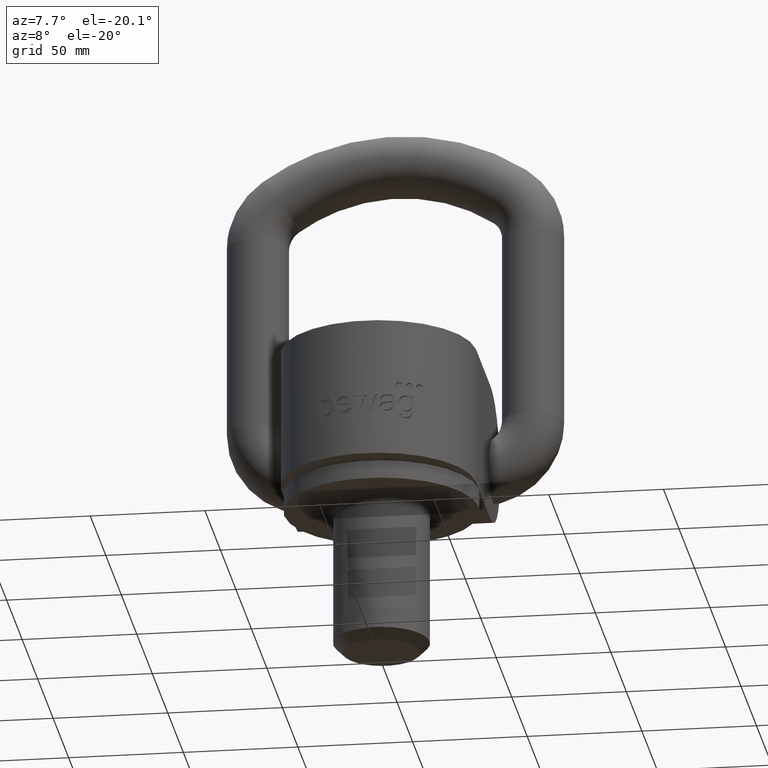
[diagram: clean part render]
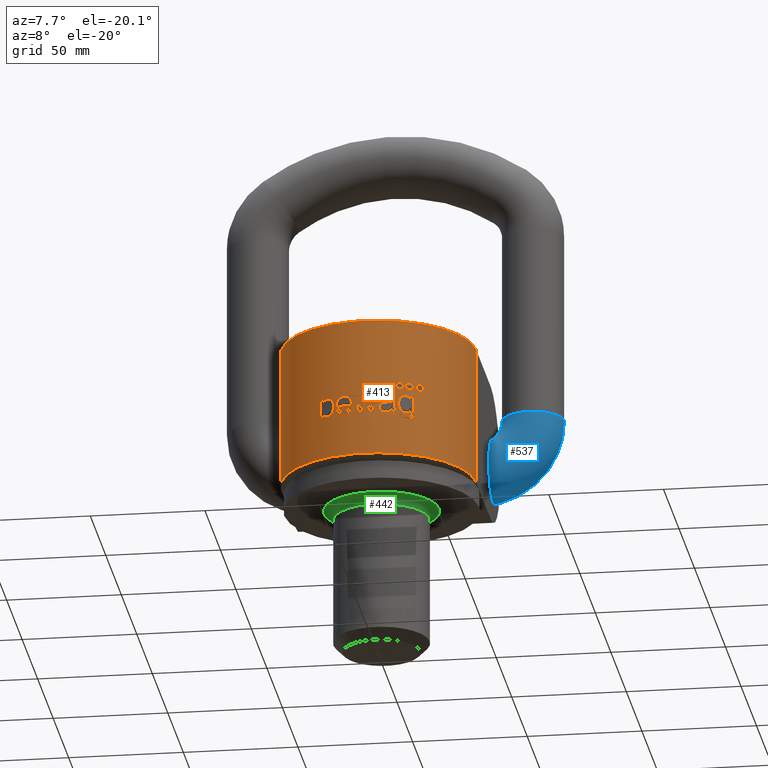
[diagram: same view with three faces highlighted in distinct colors, each labeled with its STEP entity id]
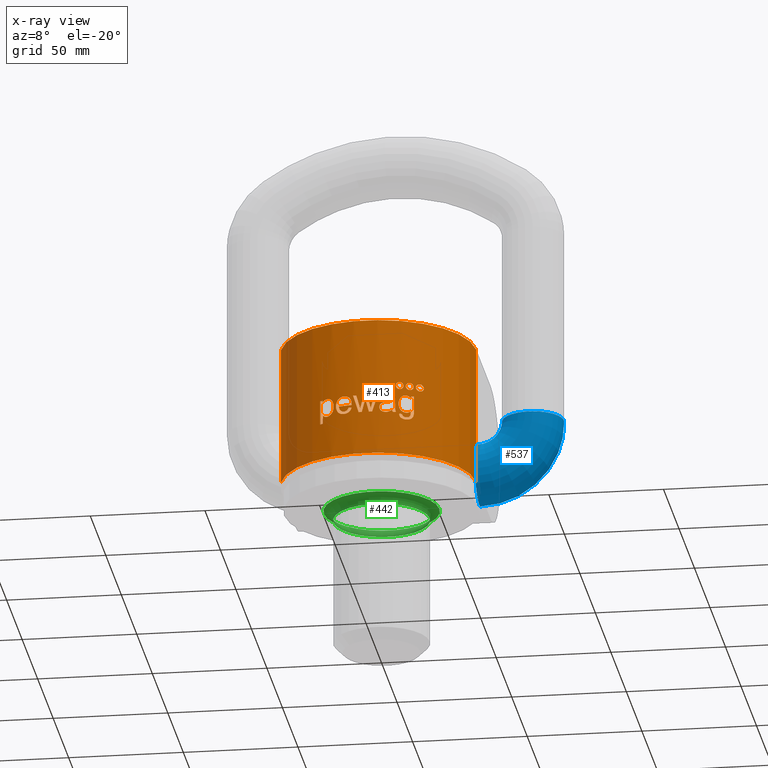
[diagram: x-ray of the same camera — body ghosted, the three highlighted faces saturated]
A machine part, auxiliary view with three faces highlighted in distinct colors.
The next image is the same camera in x-ray (body ghosted, the three faces saturated) — at least one of them is partly hidden behind the body in this view.
Their STEP definitions:

[orange] entity #413 — the highlighted cylindrical surface (partial cylindrical patch) has radius 42.5 mm, axis along (0, -0, -1).
#413=ADVANCED_FACE('',(#576,#577,#578,#579,#580,#581,#582,#583,#584),#545,
 .T.);
#545=CYLINDRICAL_SURFACE('',#2492,42.5);
#563=ELLIPSE('',#2467,42.8298246677118,42.5);
#564=ELLIPSE('',#2468,139.689809900587,42.5);
#565=ELLIPSE('',#2470,164.006912961478,42.5);
#566=ELLIPSE('',#2472,167.081016608508,42.5);
#567=ELLIPSE('',#2474,142.464053695738,42.5);
#568=ELLIPSE('',#2476,157.720696560787,42.5);
#569=ELLIPSE('',#2477,171.552942173974,42.5);
#570=ELLIPSE('',#2478,159.738689636542,42.5);
#571=ELLIPSE('',#2480,167.93764194195,42.5);
#572=ELLIPSE('',#2482,147.937964913616,42.5);
#573=ELLIPSE('',#2485,42.9807522278503,42.5);
#574=ELLIPSE('',#2486,42.8641117736269,42.5);
#575=ELLIPSE('',#2487,43.0858898926259,42.5);
#576=FACE_BOUND('',#633,.T.);
#577=FACE_BOUND('',#634,.T.);
#578=FACE_BOUND('',#635,.T.);
#579=FACE_BOUND('',#636,.T.);
#580=FACE_BOUND('',#637,.T.);
#581=FACE_BOUND('',#638,.T.);
#582=FACE_BOUND('',#639,.T.);
#583=FACE_BOUND('',#640,.T.);
#584=FACE_BOUND('',#641,.T.);
#633=EDGE_LOOP('',(#1141,#1142,#1143,#1144,#1145,#1146,#1147,#1148,#1149,
#1150));
#634=EDGE_LOOP('',(#1151,#1152,#1153,#1154,#1155,#1156,#1157,#1158,#1159));
#635=EDGE_LOOP('',(#1160,#1161,#1162,#1163,#1164,#1165,#1166,#1167,#1168,
#1169,#1170,#1171,#1172,#1173,#1174,#1175,#1176,#1177,#1178));
#636=EDGE_LOOP('',(#1179,#1180,#1181,#1182,#1183,#1184,#1185,#1186,#1187,
#1188,#1189,#1190,#1191,#1192,#1193,#1194,#1195));
#637=EDGE_LOOP('',(#1196,#1197,#1198,#1199,#1200,#1201,#1202,#1203,#1204,
#1205,#1206));
#638=EDGE_LOOP('',(#1207));
#639=EDGE_LOOP('',(#1208,#1209,#1210,#1211));
#640=EDGE_LOOP('',(#1212));
#641=EDGE_LOOP('',(#1213));
#797=LINE('',#3095,#927);
#798=LINE('',#3099,#928);
#799=LINE('',#3103,#929);
#800=LINE('',#3571,#930);
#801=LINE('',#3636,#931);
#802=LINE('',#3640,#932);
#927=VECTOR('',#2605,1.);
#928=VECTOR('',#2608,1.);
#929=VECTOR('',#2611,1.);
#930=VECTOR('',#2660,1.);
#931=VECTOR('',#2665,1.);
#932=VECTOR('',#2668,1.);
#1102=CIRCLE('',#2462,42.5);
#1103=CIRCLE('',#2463,42.5);
#1104=CIRCLE('',#2464,42.5);
#1105=CIRCLE('',#2465,42.5);
#1106=CIRCLE('',#2466,42.5);
#1107=CIRCLE('',#2469,42.5);
#1108=CIRCLE('',#2471,42.5);
#1109=CIRCLE('',#2473,42.5);
#1110=CIRCLE('',#2475,42.5);
#1111=CIRCLE('',#2479,42.5);
#1112=CIRCLE('',#2481,42.5);
#1113=CIRCLE('',#2483,42.5);
#1114=CIRCLE('',#2484,42.5);
#1115=CIRCLE('',#2488,42.5);
#1116=CIRCLE('',#2489,42.5);
#1117=CIRCLE('',#2490,42.5);
#1118=CIRCLE('',#2491,42.5);
#1141=ORIENTED_EDGE('',*,*,#1976,.F.);
#1142=ORIENTED_EDGE('',*,*,#1977,.F.);
#1143=ORIENTED_EDGE('',*,*,#1978,.F.);
#1144=ORIENTED_EDGE('',*,*,#1979,.F.);
#1145=ORIENTED_EDGE('',*,*,#1980,.F.);
#1146=ORIENTED_EDGE('',*,*,#1981,.F.);
#1147=ORIENTED_EDGE('',*,*,#1982,.F.);
#1148=ORIENTED_EDGE('',*,*,#1983,.F.);
#1149=ORIENTED_EDGE('',*,*,#1984,.F.);
#1150=ORIENTED_EDGE('',*,*,#1985,.F.);
#1151=ORIENTED_EDGE('',*,*,#1986,.F.);
#1152=ORIENTED_EDGE('',*,*,#1987,.F.);
#1153=ORIENTED_EDGE('',*,*,#1988,.F.);
#1154=ORIENTED_EDGE('',*,*,#1989,.F.);
#1155=ORIENTED_EDGE('',*,*,#1990,.F.);
#1156=ORIENTED_EDGE('',*,*,#1991,.F.);
#1157=ORIENTED_EDGE('',*,*,#1992,.F.);
#1158=ORIENTED_EDGE('',*,*,#1993,.F.);
#1159=ORIENTED_EDGE('',*,*,#1994,.F.);
#1160=ORIENTED_EDGE('',*,*,#1995,.F.);
#1161=ORIENTED_EDGE('',*,*,#1996,.F.);
#1162=ORIENTED_EDGE('',*,*,#1997,.F.);
#1163=ORIENTED_EDGE('',*,*,#1998,.F.);
#1164=ORIENTED_EDGE('',*,*,#1999,.F.);
#1165=ORIENTED_EDGE('',*,*,#2000,.F.);
#1166=ORIENTED_EDGE('',*,*,#2001,.F.);
#1167=ORIENTED_EDGE('',*,*,#2002,.F.);
#1168=ORIENTED_EDGE('',*,*,#2003,.F.);
#1169=ORIENTED_EDGE('',*,*,#2004,.F.);
#1170=ORIENTED_EDGE('',*,*,#2005,.F.);
#1171=ORIENTED_EDGE('',*,*,#2006,.F.);
#1172=ORIENTED_EDGE('',*,*,#2007,.F.);
#1173=ORIENTED_EDGE('',*,*,#2008,.F.);
#1174=ORIENTED_EDGE('',*,*,#2009,.F.);
#1175=ORIENTED_EDGE('',*,*,#2010,.F.);
#1176=ORIENTED_EDGE('',*,*,#2011,.F.);
#1177=ORIENTED_EDGE('',*,*,#2012,.F.);
#1178=ORIENTED_EDGE('',*,*,#2013,.F.);
#1179=ORIENTED_EDGE('',*,*,#2014,.F.);
#1180=ORIENTED_EDGE('',*,*,#2015,.F.);
#1181=ORIENTED_EDGE('',*,*,#2016,.F.);
#1182=ORIENTED_EDGE('',*,*,#2017,.F.);
#1183=ORIENTED_EDGE('',*,*,#2018,.F.);
#1184=ORIENTED_EDGE('',*,*,#2019,.F.);
#1185=ORIENTED_EDGE('',*,*,#2020,.F.);
#1186=ORIENTED_EDGE('',*,*,#2021,.F.);
#1187=ORIENTED_EDGE('',*,*,#2022,.F.);
#1188=ORIENTED_EDGE('',*,*,#2023,.F.);
#1189=ORIENTED_EDGE('',*,*,#2024,.F.);
#1190=ORIENTED_EDGE('',*,*,#2025,.F.);
#1191=ORIENTED_EDGE('',*,*,#2026,.F.);
#1192=ORIENTED_EDGE('',*,*,#2027,.F.);
#1193=ORIENTED_EDGE('',*,*,#2028,.F.);
#1194=ORIENTED_EDGE('',*,*,#2029,.F.);
#1195=ORIENTED_EDGE('',*,*,#2030,.F.);
#1196=ORIENTED_EDGE('',*,*,#2031,.F.);
#1197=ORIENTED_EDGE('',*,*,#2032,.F.);
#1198=ORIENTED_EDGE('',*,*,#2033,.F.);
#1199=ORIENTED_EDGE('',*,*,#2034,.F.);
#1200=ORIENTED_EDGE('',*,*,#2035,.F.);
#1201=ORIENTED_EDGE('',*,*,#2036,.F.);
#1202=ORIENTED_EDGE('',*,*,#2037,.F.);
#1203=ORIENTED_EDGE('',*,*,#2038,.F.);
#1204=ORIENTED_EDGE('',*,*,#2039,.F.);
#1205=ORIENTED_EDGE('',*,*,#2040,.F.);
#1206=ORIENTED_EDGE('',*,*,#2041,.F.);
#1207=ORIENTED_EDGE('',*,*,#2042,.T.);
#1208=ORIENTED_EDGE('',*,*,#2043,.F.);
#1209=ORIENTED_EDGE('',*,*,#2044,.F.);
#1210=ORIENTED_EDGE('',*,*,#2045,.F.);
#1211=ORIENTED_EDGE('',*,*,#2046,.F.);
#1212=ORIENTED_EDGE('',*,*,#2047,.T.);
#1213=ORIENTED_EDGE('',*,*,#2048,.T.);
#1763=VERTEX_POINT('',#3067);
#1764=VERTEX_POINT('',#3068);
#1765=VERTEX_POINT('',#3079);
#1766=VERTEX_POINT('',#3092);
#1767=VERTEX_POINT('',#3094);
#1768=VERTEX_POINT('',#3096);
#1769=VERTEX_POINT('',#3098);
#1770=VERTEX_POINT('',#3100);
#1771=VERTEX_POINT('',#3102);
#1772=VERTEX_POINT('',#3104);
#1773=VERTEX_POINT('',#3107);
#1774=VERTEX_POINT('',#3108);
#1775=VERTEX_POINT('',#3119);
#1776=VERTEX_POINT('',#3136);
#1777=VERTEX_POINT('',#3147);
#1778=VERTEX_POINT('',#3149);
#1779=VERTEX_POINT('',#3160);
#1780=VERTEX_POINT('',#3167);
#1781=VERTEX_POINT('',#3180);
#1782=VERTEX_POINT('',#3192);
#1783=VERTEX_POINT('',#3193);
#1784=VERTEX_POINT('',#3195);
#1785=VERTEX_POINT('',#3197);
#1786=VERTEX_POINT('',#3262);
#1787=VERTEX_POINT('',#3273);
#1788=VERTEX_POINT('',#3275);
#1789=VERTEX_POINT('',#3277);
#1790=VERTEX_POINT('',#3279);
#1791=VERTEX_POINT('',#3281);
#1792=VERTEX_POINT('',#3283);
#1793=VERTEX_POINT('',#3285);
#1794=VERTEX_POINT('',#3287);
#1795=VERTEX_POINT('',#3289);
#1796=VERTEX_POINT('',#3291);
#1797=VERTEX_POINT('',#3293);
#1798=VERTEX_POINT('',#3304);
#1799=VERTEX_POINT('',#3306);
#1800=VERTEX_POINT('',#3308);
#1801=VERTEX_POINT('',#3311);
#1802=VERTEX_POINT('',#3312);
#1803=VERTEX_POINT('',#3323);
#1804=VERTEX_POINT('',#3355);
#1805=VERTEX_POINT('',#3366);
#1806=VERTEX_POINT('',#3368);
#1807=VERTEX_POINT('',#3379);
#1808=VERTEX_POINT('',#3390);
#1809=VERTEX_POINT('',#3401);
#1810=VERTEX_POINT('',#3412);
#1811=VERTEX_POINT('',#3423);
#1812=VERTEX_POINT('',#3434);
#1813=VERTEX_POINT('',#3436);
#1814=VERTEX_POINT('',#3447);
#1815=VERTEX_POINT('',#3454);
#1816=VERTEX_POINT('',#3465);
#1817=VERTEX_POINT('',#3472);
#1818=VERTEX_POINT('',#3493);
#1819=VERTEX_POINT('',#3494);
#1820=VERTEX_POINT('',#3501);
#1821=VERTEX_POINT('',#3515);
#1822=VERTEX_POINT('',#3517);
#1823=VERTEX_POINT('',#3528);
#1824=VERTEX_POINT('',#3542);
#1825=VERTEX_POINT('',#3549);
#1826=VERTEX_POINT('',#3568);
#1827=VERTEX_POINT('',#3570);
#1828=VERTEX_POINT('',#3572);
#1829=VERTEX_POINT('',#3632);
#1830=VERTEX_POINT('',#3634);
#1831=VERTEX_POINT('',#3635);
#1832=VERTEX_POINT('',#3637);
#1833=VERTEX_POINT('',#3639);
#1834=VERTEX_POINT('',#3699);
#1835=VERTEX_POINT('',#3758);
#1976=EDGE_CURVE('',#1763,#1764,#2287,.T.);
#1977=EDGE_CURVE('',#1765,#1763,#2288,.T.);
#1978=EDGE_CURVE('',#1766,#1765,#2289,.T.);
#1979=EDGE_CURVE('',#1767,#1766,#1102,.T.);
#1980=EDGE_CURVE('',#1768,#1767,#797,.T.);
#1981=EDGE_CURVE('',#1769,#1768,#1103,.T.);
#1982=EDGE_CURVE('',#1770,#1769,#798,.T.);
#1983=EDGE_CURVE('',#1771,#1770,#1104,.T.);
#1984=EDGE_CURVE('',#1772,#1771,#799,.T.);
#1985=EDGE_CURVE('',#1764,#1772,#1105,.T.);
#1986=EDGE_CURVE('',#1773,#1774,#1106,.T.);
#1987=EDGE_CURVE('',#1775,#1773,#2290,.T.);
#1988=EDGE_CURVE('',#1776,#1775,#2291,.T.);
#1989=EDGE_CURVE('',#1777,#1776,#2292,.T.);
#1990=EDGE_CURVE('',#1778,#1777,#563,.T.);
#1991=EDGE_CURVE('',#1779,#1778,#2293,.T.);
#1992=EDGE_CURVE('',#1780,#1779,#2294,.T.);
#1993=EDGE_CURVE('',#1781,#1780,#2295,.T.);
#1994=EDGE_CURVE('',#1774,#1781,#2296,.T.);
#1995=EDGE_CURVE('',#1782,#1783,#564,.T.);
#1996=EDGE_CURVE('',#1784,#1782,#1107,.T.);
#1997=EDGE_CURVE('',#1785,#1784,#565,.T.);
#1998=EDGE_CURVE('',#1786,#1785,#2297,.T.);
#1999=EDGE_CURVE('',#1787,#1786,#2298,.T.);
#2000=EDGE_CURVE('',#1788,#1787,#1108,.T.);
#2001=EDGE_CURVE('',#1789,#1788,#566,.T.);
#2002=EDGE_CURVE('',#1790,#1789,#1109,.T.);
#2003=EDGE_CURVE('',#1791,#1790,#567,.T.);
#2004=EDGE_CURVE('',#1792,#1791,#1110,.T.);
#2005=EDGE_CURVE('',#1793,#1792,#568,.T.);
#2006=EDGE_CURVE('',#1794,#1793,#569,.T.);
#2007=EDGE_CURVE('',#1795,#1794,#570,.T.);
#2008=EDGE_CURVE('',#1796,#1795,#1111,.T.);
#2009=EDGE_CURVE('',#1797,#1796,#571,.T.);
#2010=EDGE_CURVE('',#1798,#1797,#2299,.T.);
#2011=EDGE_CURVE('',#1799,#1798,#1112,.T.);
#2012=EDGE_CURVE('',#1800,#1799,#572,.T.);
#2013=EDGE_CURVE('',#1783,#1800,#1113,.T.);
#2014=EDGE_CURVE('',#1801,#1802,#1114,.T.);
#2015=EDGE_CURVE('',#1803,#1801,#2300,.T.);
#2016=EDGE_CURVE('',#1804,#1803,#2301,.T.);
#2017=EDGE_CURVE('',#1805,#1804,#2302,.T.);
#2018=EDGE_CURVE('',#1806,#1805,#573,.T.);
#2019=EDGE_CURVE('',#1807,#1806,#2303,.T.);
#2020=EDGE_CURVE('',#1808,#1807,#2304,.T.);
#2021=EDGE_CURVE('',#1809,#1808,#2305,.T.);
#2022=EDGE_CURVE('',#1810,#1809,#2306,.T.);
#2023=EDGE_CURVE('',#1811,#1810,#2307,.T.);
#2024=EDGE_CURVE('',#1812,#1811,#2308,.T.);
#2025=EDGE_CURVE('',#1813,#1812,#574,.T.);
#2026=EDGE_CURVE('',#1814,#1813,#2309,.T.);
#2027=EDGE_CURVE('',#1815,#1814,#2310,.T.);
#2028=EDGE_CURVE('',#1816,#1815,#2311,.T.);
#2029=EDGE_CURVE('',#1817,#1816,#2312,.T.);
#2030=EDGE_CURVE('',#1802,#1817,#2313,.T.);
#2031=EDGE_CURVE('',#1818,#1819,#2314,.T.);
#2032=EDGE_CURVE('',#1820,#1818,#2315,.T.);
#2033=EDGE_CURVE('',#1821,#1820,#2316,.T.);
#2034=EDGE_CURVE('',#1822,#1821,#575,.T.);
#2035=EDGE_CURVE('',#1823,#1822,#2317,.T.);
#2036=EDGE_CURVE('',#1824,#1823,#2318,.T.);
#2037=EDGE_CURVE('',#1825,#1824,#2319,.T.);
#2038=EDGE_CURVE('',#1826,#1825,#2320,.T.);
#2039=EDGE_CURVE('',#1827,#1826,#1115,.T.);
#2040=EDGE_CURVE('',#1828,#1827,#800,.T.);
#2041=EDGE_CURVE('',#1819,#1828,#1116,.T.);
#2042=EDGE_CURVE('',#1829,#1829,#2321,.T.);
#2043=EDGE_CURVE('',#1830,#1831,#1117,.T.);
#2044=EDGE_CURVE('',#1832,#1830,#801,.T.);
#2045=EDGE_CURVE('',#1833,#1832,#1118,.T.);
#2046=EDGE_CURVE('',#1831,#1833,#802,.T.);
#2047=EDGE_CURVE('',#1834,#1834,#2322,.T.);
#2048=EDGE_CURVE('',#1835,#1835,#2323,.T.);
#2287=B_SPLINE_CURVE_WITH_KNOTS('',3,(#3057,#3058,#3059,#3060,#3061,#3062,
#3063,#3064,#3065,#3066),.UNSPECIFIED.,.F.,.F.,(4,3,3,4),(0.,0.39165779774726,
0.694208532104574,1.),.UNSPECIFIED.);
#2288=B_SPLINE_CURVE_WITH_KNOTS('',3,(#3069,#3070,#3071,#3072,#3073,#3074,
#3075,#3076,#3077,#3078),.UNSPECIFIED.,.F.,.F.,(4,3,3,4),(0.,0.352238037569731,
0.705837311240719,1.),.UNSPECIFIED.);
#2289=B_SPLINE_CURVE_WITH_KNOTS('',3,(#3080,#3081,#3082,#3083,#3084,#3085,
#3086,#3087,#3088,#3089,#3090,#3091),.UNSPECIFIED.,.F.,.F.,(4,2,2,2,2,4),
(0.,0.125,0.25,0.5,0.75,1.),.UNSPECIFIED.);
#2290=B_SPLINE_CURVE_WITH_KNOTS('',3,(#3109,#3110,#3111,#3112,#3113,#3114,
#3115,#3116,#3117,#3118),.UNSPECIFIED.,.F.,.F.,(4,3,3,4),(0.,0.247240170800066,
0.663841143719357,1.),.UNSPECIFIED.);
#2291=B_SPLINE_CURVE_WITH_KNOTS('',3,(#3120,#3121,#3122,#3123,#3124,#3125,
#3126,#3127,#3128,#3129,#3130,#3131,#3132,#3133,#3134,#3135),
 .UNSPECIFIED.,.F.,.F.,(4,3,3,3,3,4),(0.,0.198766169573326,0.39563469344652,
0.634969042155877,0.906976755550903,1.),.UNSPECIFIED.);
#2292=B_SPLINE_CURVE_WITH_KNOTS('',3,(#3137,#3138,#3139,#3140,#3141,#3142,
#3143,#3144,#3145,#3146),.UNSPECIFIED.,.F.,.F.,(4,3,3,4),(0.,0.291582744666731,
0.583827807706867,1.),.UNSPECIFIED.);
#2293=B_SPLINE_CURVE_WITH_KNOTS('',3,(#3150,#3151,#3152,#3153,#3154,#3155,
#3156,#3157,#3158,#3159),.UNSPECIFIED.,.F.,.F.,(4,3,3,4),(0.,0.279743626133197,
0.746666449623432,1.),.UNSPECIFIED.);
#2294=B_SPLINE_CURVE_WITH_KNOTS('',3,(#3161,#3162,#3163,#3164,#3165,#3166),
 .UNSPECIFIED.,.F.,.F.,(4,2,4),(0.,0.5,1.),.UNSPECIFIED.);
#2295=B_SPLINE_CURVE_WITH_KNOTS('',3,(#3168,#3169,#3170,#3171,#3172,#3173,
#3174,#3175,#3176,#3177,#3178,#3179),.UNSPECIFIED.,.F.,.F.,(4,2,2,2,2,4),
(0.,0.125,0.25,0.5,0.75,1.),.UNSPECIFIED.);
#2296=B_SPLINE_CURVE_WITH_KNOTS('',3,(#3181,#3182,#3183,#3184,#3185,#3186,
#3187,#3188,#3189,#3190),.UNSPECIFIED.,.F.,.F.,(4,3,3,4),(0.,0.326762048751429,
0.655781069521532,1.),.UNSPECIFIED.);
#2297=B_SPLINE_CURVE_WITH_KNOTS('',3,(#3198,#3199,#3200,#3201,#3202,#3203,
#3204,#3205,#3206,#3207,#3208,#3209,#3210,#3211,#3212,#3213,#3214,#3215,
#3216,#3217,#3218,#3219,#3220,#3221,#3222,#3223,#3224,#3225,#3226,#3227,
#3228,#3229,#3230,#3231,#3232,#3233,#3234,#3235,#3236,#3237,#3238,#3239,
#3240,#3241,#3242,#3243,#3244,#3245,#3246,#3247,#3248,#3249,#3250,#3251,
#3252,#3253,#3254,#3255,#3256,#3257,#3258,#3259,#3260,#3261),
 .UNSPECIFIED.,.F.,.F.,(4,3,3,3,3,3,3,3,3,3,3,3,3,3,3,3,3,3,3,3,3,4),(0.,
0.499553315865351,0.749371457656811,0.83402970278063,0.889946163445802,
0.926899980438885,0.951339488323276,0.967517620447813,0.978239998190747,
0.985357925993265,0.990093337521175,0.993253011920817,0.995369807568911,
0.996795785622425,0.997763616137896,0.998427273364799,0.998888982341677,
0.999371387660035,0.999590041197857,0.999773233085356,0.999908554331071,
1.),.UNSPECIFIED.);
#2298=B_SPLINE_CURVE_WITH_KNOTS('',3,(#3263,#3264,#3265,#3266,#3267,#3268,
#3269,#3270,#3271,#3272),.UNSPECIFIED.,.F.,.F.,(4,3,3,4),(0.,0.133710786362323,
0.662259428205575,1.),.UNSPECIFIED.);
#2299=B_SPLINE_CURVE_WITH_KNOTS('',3,(#3294,#3295,#3296,#3297,#3298,#3299,
#3300,#3301,#3302,#3303),.UNSPECIFIED.,.F.,.F.,(4,3,3,4),(0.,0.284451124598499,
0.642221045653072,1.),.UNSPECIFIED.);
#2300=B_SPLINE_CURVE_WITH_KNOTS('',3,(#3313,#3314,#3315,#3316,#3317,#3318,
#3319,#3320,#3321,#3322),.UNSPECIFIED.,.F.,.F.,(4,3,3,4),(0.,0.29810777247679,
0.59645938413644,1.),.UNSPECIFIED.);
#2301=B_SPLINE_CURVE_WITH_KNOTS('',3,(#3324,#3325,#3326,#3327,#3328,#3329,
#3330,#3331,#3332,#3333,#3334,#3335,#3336,#3337,#3338,#3339,#3340,#3341,
#3342,#3343,#3344,#3345,#3346,#3347,#3348,#3349,#3350,#3351,#3352,#3353,
#3354),.UNSPECIFIED.,.F.,.F.,(4,3,3,3,3,3,3,3,3,3,4),(0.,0.0780122411292468,
0.156314956137167,0.252221628366494,0.327487061807232,0.40282272437675,
0.479618288086878,0.58975970012647,0.751045473062606,0.909884427350642,
1.),.UNSPECIFIED.);
#2302=B_SPLINE_CURVE_WITH_KNOTS('',3,(#3356,#3357,#3358,#3359,#3360,#3361,
#3362,#3363,#3364,#3365),.UNSPECIFIED.,.F.,.F.,(4,3,3,4),(0.,0.336609162967313,
0.658853350552493,1.),.UNSPECIFIED.);
#2303=B_SPLINE_CURVE_WITH_KNOTS('',3,(#3369,#3370,#3371,#3372,#3373,#3374,
#3375,#3376,#3377,#3378),.UNSPECIFIED.,.F.,.F.,(4,3,3,4),(0.,0.296612768273011,
0.593035536686827,1.),.UNSPECIFIED.);
#2304=B_SPLINE_CURVE_WITH_KNOTS('',3,(#3380,#3381,#3382,#3383,#3384,#3385,
#3386,#3387,#3388,#3389),.UNSPECIFIED.,.F.,.F.,(4,3,3,4),(0.,0.354196373045442,
0.676989757518132,1.),.UNSPECIFIED.);
#2305=B_SPLINE_CURVE_WITH_KNOTS('',3,(#3391,#3392,#3393,#3394,#3395,#3396,
#3397,#3398,#3399,#3400),.UNSPECIFIED.,.F.,.F.,(4,3,3,4),(0.,0.284062316983162,
0.56843584629566,1.),.UNSPECIFIED.);
#2306=B_SPLINE_CURVE_WITH_KNOTS('',3,(#3402,#3403,#3404,#3405,#3406,#3407,
#3408,#3409,#3410,#3411),.UNSPECIFIED.,.F.,.F.,(4,3,3,4),(0.,0.294807138526078,
0.590298925498008,1.),.UNSPECIFIED.);
#2307=B_SPLINE_CURVE_WITH_KNOTS('',3,(#3413,#3414,#3415,#3416,#3417,#3418,
#3419,#3420,#3421,#3422),.UNSPECIFIED.,.F.,.F.,(4,3,3,4),(0.,0.278855867610496,
0.735722394139002,1.),.UNSPECIFIED.);
#2308=B_SPLINE_CURVE_WITH_KNOTS('',3,(#3424,#3425,#3426,#3427,#3428,#3429,
#3430,#3431,#3432,#3433),.UNSPECIFIED.,.F.,.F.,(4,3,3,4),(0.,0.324752376652685,
0.768673925460958,1.),.UNSPECIFIED.);
#2309=B_SPLINE_CURVE_WITH_KNOTS('',3,(#3437,#3438,#3439,#3440,#3441,#3442,
#3443,#3444,#3445,#3446),.UNSPECIFIED.,.F.,.F.,(4,3,3,4),(0.,0.276746719904188,
0.659623398338797,1.),.UNSPECIFIED.);
#2310=B_SPLINE_CURVE_WITH_KNOTS('',3,(#3448,#3449,#3450,#3451,#3452,#3453),
 .UNSPECIFIED.,.F.,.F.,(4,2,4),(0.,0.5,1.),.UNSPECIFIED.);
#2311=B_SPLINE_CURVE_WITH_KNOTS('',3,(#3455,#3456,#3457,#3458,#3459,#3460,
#3461,#3462,#3463,#3464),.UNSPECIFIED.,.F.,.F.,(4,3,3,4),(0.,0.26045329019796,
0.651117404602239,1.),.UNSPECIFIED.);
#2312=B_SPLINE_CURVE_WITH_KNOTS('',3,(#3466,#3467,#3468,#3469,#3470,#3471),
 .UNSPECIFIED.,.F.,.F.,(4,2,4),(0.,0.5,1.),.UNSPECIFIED.);
#2313=B_SPLINE_CURVE_WITH_KNOTS('',3,(#3473,#3474,#3475,#3476,#3477,#3478,
#3479,#3480,#3481,#3482),.UNSPECIFIED.,.F.,.F.,(4,3,3,4),(0.,0.264702455054213,
0.529532191004727,1.),.UNSPECIFIED.);
#2314=B_SPLINE_CURVE_WITH_KNOTS('',3,(#3483,#3484,#3485,#3486,#3487,#3488,
#3489,#3490,#3491,#3492),.UNSPECIFIED.,.F.,.F.,(4,3,3,4),(0.,0.146567078125604,
0.470503150225409,1.),.UNSPECIFIED.);
#2315=B_SPLINE_CURVE_WITH_KNOTS('',3,(#3495,#3496,#3497,#3498,#3499,#3500),
 .UNSPECIFIED.,.F.,.F.,(4,2,4),(0.,0.5,1.),.UNSPECIFIED.);
#2316=B_SPLINE_CURVE_WITH_KNOTS('',3,(#3502,#3503,#3504,#3505,#3506,#3507,
#3508,#3509,#3510,#3511,#3512,#3513,#3514),.UNSPECIFIED.,.F.,.F.,(4,3,3,
3,4),(0.,0.401043475483819,0.63332092433361,0.866741825314163,1.),
 .UNSPECIFIED.);
#2317=B_SPLINE_CURVE_WITH_KNOTS('',3,(#3518,#3519,#3520,#3521,#3522,#3523,
#3524,#3525,#3526,#3527),.UNSPECIFIED.,.F.,.F.,(4,3,3,4),(0.,0.256741034386159,
0.614734922507564,1.),.UNSPECIFIED.);
#2318=B_SPLINE_CURVE_WITH_KNOTS('',3,(#3529,#3530,#3531,#3532,#3533,#3534,
#3535,#3536,#3537,#3538,#3539,#3540,#3541),.UNSPECIFIED.,.F.,.F.,(4,3,3,
3,4),(0.,0.199350171071215,0.498071015390968,0.843112996930601,1.),
 .UNSPECIFIED.);
#2319=B_SPLINE_CURVE_WITH_KNOTS('',3,(#3543,#3544,#3545,#3546,#3547,#3548),
 .UNSPECIFIED.,.F.,.F.,(4,2,4),(0.,0.5,1.),.UNSPECIFIED.);
#2320=B_SPLINE_CURVE_WITH_KNOTS('',3,(#3550,#3551,#3552,#3553,#3554,#3555,
#3556,#3557,#3558,#3559,#3560,#3561,#3562,#3563,#3564,#3565,#3566,#3567),
 .UNSPECIFIED.,.F.,.F.,(4,2,2,2,2,2,2,2,4),(0.,0.125,0.25,0.375,0.5,0.625,
0.75,0.875,1.),.UNSPECIFIED.);
#2321=B_SPLINE_CURVE_WITH_KNOTS('',3,(#3574,#3575,#3576,#3577,#3578,#3579,
#3580,#3581,#3582,#3583,#3584,#3585,#3586,#3587,#3588,#3589,#3590,#3591,
#3592,#3593,#3594,#3595,#3596,#3597,#3598,#3599,#3600,#3601,#3602,#3603,
#3604,#3605,#3606,#3607,#3608,#3609,#3610,#3611,#3612,#3613,#3614,#3615,
#3616,#3617,#3618,#3619,#3620,#3621,#3622,#3623,#3624,#3625,#3626,#3627,
#3628,#3629,#3630,#3631),.UNSPECIFIED.,.T.,.F.,(1,3,3,3,3,3,3,3,3,3,3,3,
3,3,3,3,3,3,3,3,3,1),(-0.0367073868415181,0.,0.060991484010063,0.122231249399368,
0.179301292083766,0.230755369736954,0.278391120314943,0.32487818972659,
0.372681240418363,0.42379249121521,0.479527479500675,0.539959743675108,
0.603004205015673,0.664124531326779,0.718757726555895,0.766536662648828,
0.811206380762681,0.857057487616173,0.907225610016424,0.963292613158482,
1.,1.06099148401006),.UNSPECIFIED.);
#2322=B_SPLINE_CURVE_WITH_KNOTS('',3,(#3641,#3642,#3643,#3644,#3645,#3646,
#3647,#3648,#3649,#3650,#3651,#3652,#3653,#3654,#3655,#3656,#3657,#3658,
#3659,#3660,#3661,#3662,#3663,#3664,#3665,#3666,#3667,#3668,#3669,#3670,
#3671,#3672,#3673,#3674,#3675,#3676,#3677,#3678,#3679,#3680,#3681,#3682,
#3683,#3684,#3685,#3686,#3687,#3688,#3689,#3690,#3691,#3692,#3693,#3694,
#3695,#3696,#3697,#3698),.UNSPECIFIED.,.T.,.F.,(1,3,3,3,3,3,3,3,3,3,3,3,
3,3,3,3,3,3,3,3,3,1),(-0.0367197482967924,0.,0.0576245706939581,0.115380338516388,
0.170999496159537,0.223565690324241,0.273920264410147,0.323453498183324,
0.373593188642525,0.425570256117129,0.480210313262633,0.537583476956383,
0.596550106951983,0.654679211305302,0.709389457177728,0.759995746809845,
0.808271178746387,0.856951409014801,0.908279432979368,0.963280251703208,
1.,1.05762457069396),.UNSPECIFIED.);
#2323=B_SPLINE_CURVE_WITH_KNOTS('',3,(#3700,#3701,#3702,#3703,#3704,#3705,
#3706,#3707,#3708,#3709,#3710,#3711,#3712,#3713,#3714,#3715,#3716,#3717,
#3718,#3719,#3720,#3721,#3722,#3723,#3724,#3725,#3726,#3727,#3728,#3729,
#3730,#3731,#3732,#3733,#3734,#3735,#3736,#3737,#3738,#3739,#3740,#3741,
#3742,#3743,#3744,#3745,#3746,#3747,#3748,#3749,#3750,#3751,#3752,#3753,
#3754,#3755,#3756,#3757),.UNSPECIFIED.,.T.,.F.,(1,3,3,3,3,3,3,3,3,3,3,3,
3,3,3,3,3,3,3,3,3,1),(-0.065995406742676,0.,0.0748415571720552,0.141559223989638,
0.189406139175088,0.237532672015932,0.281312267162049,0.323847856577254,
0.36869796381067,0.418673756299004,0.475805103754141,0.540469776596685,
0.609516497803678,0.662909236118807,0.707889954346455,0.753174917817907,
0.793903464076125,0.834776206969871,0.880423710865824,0.934004593257324,
1.,1.07484155717206),.UNSPECIFIED.);
#2462=AXIS2_PLACEMENT_3D('',#3093,#2603,#2604);
#2463=AXIS2_PLACEMENT_3D('',#3097,#2606,#2607);
#2464=AXIS2_PLACEMENT_3D('',#3101,#2609,#2610);
#2465=AXIS2_PLACEMENT_3D('',#3105,#2612,#2613);
#2466=AXIS2_PLACEMENT_3D('',#3106,#2614,#2615);
#2467=AXIS2_PLACEMENT_3D('',#3148,#2616,#2617);
#2468=AXIS2_PLACEMENT_3D('',#3191,#2618,#2619);
#2469=AXIS2_PLACEMENT_3D('',#3194,#2620,#2621);
#2470=AXIS2_PLACEMENT_3D('',#3196,#2622,#2623);
#2471=AXIS2_PLACEMENT_3D('',#3274,#2624,#2625);
#2472=AXIS2_PLACEMENT_3D('',#3276,#2626,#2627);
#2473=AXIS2_PLACEMENT_3D('',#3278,#2628,#2629);
#2474=AXIS2_PLACEMENT_3D('',#3280,#2630,#2631);
#2475=AXIS2_PLACEMENT_3D('',#3282,#2632,#2633);
#2476=AXIS2_PLACEMENT_3D('',#3284,#2634,#2635);
#2477=AXIS2_PLACEMENT_3D('',#3286,#2636,#2637);
#2478=AXIS2_PLACEMENT_3D('',#3288,#2638,#2639);
#2479=AXIS2_PLACEMENT_3D('',#3290,#2640,#2641);
#2480=AXIS2_PLACEMENT_3D('',#3292,#2642,#2643);
#2481=AXIS2_PLACEMENT_3D('',#3305,#2644,#2645);
#2482=AXIS2_PLACEMENT_3D('',#3307,#2646,#2647);
#2483=AXIS2_PLACEMENT_3D('',#3309,#2648,#2649);
#2484=AXIS2_PLACEMENT_3D('',#3310,#2650,#2651);
#2485=AXIS2_PLACEMENT_3D('',#3367,#2652,#2653);
#2486=AXIS2_PLACEMENT_3D('',#3435,#2654,#2655);
#2487=AXIS2_PLACEMENT_3D('',#3516,#2656,#2657);
#2488=AXIS2_PLACEMENT_3D('',#3569,#2658,#2659);
#2489=AXIS2_PLACEMENT_3D('',#3573,#2661,#2662);
#2490=AXIS2_PLACEMENT_3D('',#3633,#2663,#2664);
#2491=AXIS2_PLACEMENT_3D('',#3638,#2666,#2667);
#2492=AXIS2_PLACEMENT_3D('',#3759,#2669,#2670);
#2603=DIRECTION('',(0.,0.,1.));
#2604=DIRECTION('',(-1.,0.,0.));
#2605=DIRECTION('',(0.,4.55009436321785E-16,1.));
#2606=DIRECTION('',(0.,0.,1.));
#2607=DIRECTION('',(-1.,0.,0.));
#2608=DIRECTION('',(0.,-4.55009436321785E-16,-1.));
#2609=DIRECTION('',(0.,0.,-1.));
#2610=DIRECTION('',(1.,0.,0.));
#2611=DIRECTION('',(0.,4.55009436321785E-16,1.));
#2612=DIRECTION('',(0.,0.,-1.));
#2613=DIRECTION('',(1.,0.,0.));
#2614=DIRECTION('',(0.,0.,1.));
#2615=DIRECTION('',(-1.,0.,0.));
#2616=DIRECTION('',(-0.123864170013732,0.,-0.992299182397532));
#2617=DIRECTION('',(0.992299182397532,-3.67345485196681E-15,-0.123864170013732));
#2618=DIRECTION('',(-0.952593648183112,-2.46519032881566E-32,0.304245528218887));
#2619=DIRECTION('',(-0.304245528218887,-4.77653233558326E-16,-0.952593648183112));
#2620=DIRECTION('',(0.,0.,1.));
#2621=DIRECTION('',(-1.,0.,0.));
#2622=DIRECTION('',(0.965840998800877,-2.46519032881566E-32,0.259135418334362));
#2623=DIRECTION('',(0.259135418334362,-4.71101803388647E-16,-0.965840998800877));
#2624=DIRECTION('',(-1.14042779607926E-13,0.,1.));
#2625=DIRECTION('',(-1.,0.,-1.14042762161863E-13));
#2626=DIRECTION('',(-0.96710760287855,-2.46519032881566E-32,0.254367616756743));
#2627=DIRECTION('',(-0.254367616756743,-4.70484809515995E-16,-0.96710760287855));
#2628=DIRECTION('',(0.,0.,1.));
#2629=DIRECTION('',(-1.,0.,0.));
#2630=DIRECTION('',(0.954465641275027,0.,0.298320866895784));
#2631=DIRECTION('',(0.298320866895784,-4.7671641245667E-16,-0.954465641275027));
#2632=DIRECTION('',(0.,0.,-1.));
#2633=DIRECTION('',(1.,0.,0.));
#2634=DIRECTION('',(-0.963010551756508,0.,-0.269463684391098));
#2635=DIRECTION('',(0.269463684391098,-4.72486449387142E-16,-0.963010551756508));
#2636=DIRECTION('',(0.968827338219047,-2.46519032881566E-32,-0.247736934507951));
#2637=DIRECTION('',(-0.247736934507951,-4.69649666532129E-16,-0.968827338219047));
#2638=DIRECTION('',(0.963956601090742,0.,-0.266059525696007));
#2639=DIRECTION('',(-0.266059525696007,-4.7202274024259E-16,-0.963956601090742));
#2640=DIRECTION('',(0.,0.,-1.));
#2641=DIRECTION('',(1.,0.,0.));
#2642=DIRECTION('',(-0.967447937590639,0.,-0.25307012477102));
#2643=DIRECTION('',(0.25307012477102,-4.70319299511821E-16,-0.967447937590639));
#2644=DIRECTION('',(0.,0.,-1.));
#2645=DIRECTION('',(1.,0.,0.));
#2646=DIRECTION('',(0.957845874951684,0.,-0.287282578375447));
#2647=DIRECTION('',(-0.287282578375446,-4.75034082434961E-16,-0.957845874951683));
#2648=DIRECTION('',(0.,0.,-1.));
#2649=DIRECTION('',(1.,0.,0.));
#2650=DIRECTION('',(0.,0.,1.));
#2651=DIRECTION('',(-1.,0.,0.));
#2652=DIRECTION('',(0.149149158822095,0.,-0.988814708842188));
#2653=DIRECTION('',(-0.988814708842188,-3.05070065372959E-15,-0.149149158822095));
#2654=DIRECTION('',(0.130065224599899,0.,0.991505439899236));
#2655=DIRECTION('',(0.991505439899236,-3.49831738438514E-15,-0.130065224599899));
#2656=DIRECTION('',(-0.164351632031855,0.,-0.986401815209434));
#2657=DIRECTION('',(0.986401815209434,-2.76851182246609E-15,-0.164351632031855));
#2658=DIRECTION('',(0.,0.,-1.));
#2659=DIRECTION('',(1.,0.,0.));
#2660=DIRECTION('',(0.,-4.55009436321785E-16,-1.));
#2661=DIRECTION('',(0.,0.,-1.));
#2662=DIRECTION('',(1.,0.,0.));
#2663=DIRECTION('',(0.,1.33944098086855E-16,-1.));
#2664=DIRECTION('',(0.,-1.,-1.33944098086855E-16));
#2665=DIRECTION('',(0.,-4.55009436321785E-16,-1.));
#2666=DIRECTION('',(0.,1.55059081651558E-16,1.));
#2667=DIRECTION('',(0.,1.,-1.63268091856641E-16));
#2668=DIRECTION('',(0.,4.55009436321785E-16,1.));
#2669=DIRECTION('',(0.,-4.55009436321785E-16,-1.));
#2670=DIRECTION('',(0.,1.,-4.89804275569922E-16));
#3057=CARTESIAN_POINT('',(-17.2629541003016,-48.3360710645513,26.8634241493988));
#3058=CARTESIAN_POINT('',(-17.5777357815901,-48.1961480093415,26.8634241493988));
#3059=CARTESIAN_POINT('',(-17.8971583037857,-48.0492767425272,26.8145163972344));
#3060=CARTESIAN_POINT('',(-18.1900337053251,-47.9105802325236,26.6976692939753));
#3061=CARTESIAN_POINT('',(-18.4169793654814,-47.8031059589633,26.6071258654488));
#3062=CARTESIAN_POINT('',(-18.6324287391821,-47.6984994371427,26.4728418185503));
#3063=CARTESIAN_POINT('',(-18.817839036852,-47.6069407586483,26.3040425457414));
#3064=CARTESIAN_POINT('',(-19.0055459219891,-47.5142479871925,26.1331524381769));
#3065=CARTESIAN_POINT('',(-19.1671412891634,-47.4327356819358,25.9238330198777));
#3066=CARTESIAN_POINT('',(-19.2985133116705,-47.3657811745549,25.6973650550013));
#3067=CARTESIAN_POINT('',(-17.2629541003016,-48.3360710645513,26.8634241493988));
#3068=CARTESIAN_POINT('',(-19.2985133116705,-47.3657811745549,25.6973650550013));
#3069=CARTESIAN_POINT('',(-15.0460084245533,-49.2475487355921,25.7653172166794));
#3070=CARTESIAN_POINT('',(-15.2320424585819,-49.1771275465556,26.0152837237559));
#3071=CARTESIAN_POINT('',(-15.4559446901769,-49.0908609707012,26.2392046232644));
#3072=CARTESIAN_POINT('',(-15.7061394017014,-48.9913558275013,26.411112718316));
#3073=CARTESIAN_POINT('',(-15.957068005901,-48.8915588072459,26.5835250689971));
#3074=CARTESIAN_POINT('',(-16.240295725559,-48.7759517141525,26.7070414314367));
#3075=CARTESIAN_POINT('',(-16.5280960250291,-48.6544638807303,26.7781914298917));
#3076=CARTESIAN_POINT('',(-16.7692509098302,-48.5526662643707,26.8378097475676));
#3077=CARTESIAN_POINT('',(-17.0176346488365,-48.4451175853364,26.8634241493988));
#3078=CARTESIAN_POINT('',(-17.2629541003016,-48.3360710645513,26.8634241493988));
#3079=CARTESIAN_POINT('',(-15.0460084245533,-49.2475487355921,25.7653172166794));
#3080=CARTESIAN_POINT('',(-19.1851467714334,-47.4233456245432,19.8045535942696));
#3081=CARTESIAN_POINT('',(-18.9222350818094,-47.5563507502855,19.4294380495136));
#3082=CARTESIAN_POINT('',(-18.577289959038,-47.727347639108,19.1308118966456));
#3083=CARTESIAN_POINT('',(-17.777313474762,-48.1058665925716,18.8105275249697));
#3084=CARTESIAN_POINT('',(-17.3337230769201,-48.3073767030216,18.7843447930854));
#3085=CARTESIAN_POINT('',(-16.0413771535595,-48.8675753397077,18.9846212761301));
#3086=CARTESIAN_POINT('',(-15.2624558122436,-49.1679344548055,19.6006261604443));
#3087=CARTESIAN_POINT('',(-14.3486753389519,-49.5075380065905,21.2105309164643));
#3088=CARTESIAN_POINT('',(-14.2100452065804,-49.5540322714742,22.1919939349136));
#3089=CARTESIAN_POINT('',(-14.2661358580561,-49.5340886452638,24.0632530680282));
#3090=CARTESIAN_POINT('',(-14.4906171156352,-49.4577861610115,25.0155891166182));
#3091=CARTESIAN_POINT('',(-15.0460084245533,-49.2475487355921,25.7653172166794));
#3092=CARTESIAN_POINT('',(-19.1851467714334,-47.4233456245432,19.8045535942696));
#3093=CARTESIAN_POINT('',(0.,-9.50000000000001,19.8045535942696));
#3094=CARTESIAN_POINT('',(-19.2178971052796,-47.4067596986459,19.8045535942696));
#3095=CARTESIAN_POINT('',(-19.2178971052796,-47.4067596986459,61.));
#3096=CARTESIAN_POINT('',(-19.2178971052796,-47.4067596986459,16.0427219237657));
#3097=CARTESIAN_POINT('',(0.,-9.50000000000001,16.0427219237657));
#3098=CARTESIAN_POINT('',(-20.4271402011424,-46.7690480587159,16.0427219237657));
#3099=CARTESIAN_POINT('',(-20.4271402011424,-46.7690480587159,61.));
#3100=CARTESIAN_POINT('',(-20.4271402011424,-46.7690480587159,26.6894666155027));
#3101=CARTESIAN_POINT('',(0.,-9.5,26.6894666155027));
#3102=CARTESIAN_POINT('',(-19.3262251326173,-47.3516449064422,26.6894666155027));
#3103=CARTESIAN_POINT('',(-19.3262251326173,-47.3516449064422,61.));
#3104=CARTESIAN_POINT('',(-19.3262251326173,-47.3516449064422,25.6973650550013));
#3105=CARTESIAN_POINT('',(0.,-9.5,25.6973650550013));
#3106=CARTESIAN_POINT('',(0.,-9.50000000000001,22.5144858019954));
#3107=CARTESIAN_POINT('',(-11.788158811069,-50.3324541491816,22.5144858019954));
#3108=CARTESIAN_POINT('',(-6.07628003754393,-51.563390506536,22.5144858019954));
#3109=CARTESIAN_POINT('',(-11.0660911170574,-50.5340301139065,20.5656178050652));
#3110=CARTESIAN_POINT('',(-11.1855594594344,-50.5018117927063,20.6906897217828));
#3111=CARTESIAN_POINT('',(-11.290346526561,-50.4729948534895,20.8322081106717));
#3112=CARTESIAN_POINT('',(-11.3777648976754,-50.4487053022831,20.9829454169253));
#3113=CARTESIAN_POINT('',(-11.5240401758097,-50.4080621192406,21.2351709058741));
#3114=CARTESIAN_POINT('',(-11.6248015115033,-50.3793168691493,21.5179525176187));
#3115=CARTESIAN_POINT('',(-11.6897095302054,-50.3607475592338,21.8044977189989));
#3116=CARTESIAN_POINT('',(-11.7424297688644,-50.3456650090334,22.0372383218617));
#3117=CARTESIAN_POINT('',(-11.7730466259996,-50.336816973834,22.2758905741947));
#3118=CARTESIAN_POINT('',(-11.788158811069,-50.3324541491816,22.5144858019954));
#3119=CARTESIAN_POINT('',(-11.0660911170574,-50.5340301139065,20.5656178050652));
#3120=CARTESIAN_POINT('',(-8.21823457761584,-51.1978491103232,20.2856548989511));
#3121=CARTESIAN_POINT('',(-8.38140640968892,-51.1656895524312,20.1568846941232));
#3122=CARTESIAN_POINT('',(-8.57033042604764,-51.127390279761,20.0576333824891));
#3123=CARTESIAN_POINT('',(-8.76648175501006,-51.0860408988293,19.9939471638844));
#3124=CARTESIAN_POINT('',(-8.96160271444644,-51.0449087233697,19.9305954846337));
#3125=CARTESIAN_POINT('',(-9.16775031885605,-50.9999528582502,19.8996220510221));
#3126=CARTESIAN_POINT('',(-9.3717273096605,-50.9538385102437,19.8929636680655));
#3127=CARTESIAN_POINT('',(-9.61924802272771,-50.8978799618988,19.8848838954854));
#3128=CARTESIAN_POINT('',(-9.87079347695305,-50.838569867973,19.9101217586806));
#3129=CARTESIAN_POINT('',(-10.1085594535344,-50.780346725462,19.9775053717595));
#3130=CARTESIAN_POINT('',(-10.3766969073661,-50.7146863420402,20.0534963554181));
#3131=CARTESIAN_POINT('',(-10.6338508823638,-50.6487755620452,20.1883086549758));
#3132=CARTESIAN_POINT('',(-10.8511567326325,-50.5913907961734,20.3657030342009));
#3133=CARTESIAN_POINT('',(-10.9268198075501,-50.5714101659515,20.4274694532304));
#3134=CARTESIAN_POINT('',(-10.9986006250479,-50.5522310055089,20.4945335026985));
#3135=CARTESIAN_POINT('',(-11.0660911170574,-50.5340301139065,20.5656178050652));
#3136=CARTESIAN_POINT('',(-8.21823457761584,-51.1978491103232,20.2856548989511));
#3137=CARTESIAN_POINT('',(-7.44766979967802,-51.3423495343529,21.4788948580199));
#3138=CARTESIAN_POINT('',(-7.49225046709269,-51.3344144615368,21.3453341079267));
#3139=CARTESIAN_POINT('',(-7.54387413452438,-51.325156540712,21.2138456634658));
#3140=CARTESIAN_POINT('',(-7.60417630808593,-51.3141902071001,21.0868328190599));
#3141=CARTESIAN_POINT('',(-7.66455773130183,-51.3032094614347,20.9596530532411));
#3142=CARTESIAN_POINT('',(-7.73403235426407,-51.2904454628744,20.8362914836113));
#3143=CARTESIAN_POINT('',(-7.81381792007871,-51.2755221333242,20.7207374114136));
#3144=CARTESIAN_POINT('',(-7.92664253503204,-51.2544190817493,20.5573326204734));
#3145=CARTESIAN_POINT('',(-8.062856985672,-51.2284725004007,20.4072931747086));
#3146=CARTESIAN_POINT('',(-8.21823457761584,-51.1978491103232,20.2856548989511));
#3147=CARTESIAN_POINT('',(-7.44766979967802,-51.3423495343529,21.4788948580199));
#3148=CARTESIAN_POINT('',(0.,-9.50000000000001,20.5492362886714));
#3149=CARTESIAN_POINT('',(-6.1193885565894,-51.5571406980252,21.3130915835252));
#3150=CARTESIAN_POINT('',(-7.3048728303399,-51.3675152466989,19.4647927858787));
#3151=CARTESIAN_POINT('',(-7.13853901543064,-51.3965364904517,19.5892666521791));
#3152=CARTESIAN_POINT('',(-6.98400239670947,-51.422464374231,19.7322325707572));
#3153=CARTESIAN_POINT('',(-6.84686178578196,-51.4448505026111,19.8893765431314));
#3154=CARTESIAN_POINT('',(-6.61986511786585,-51.4819042718446,20.149482997892));
#3155=CARTESIAN_POINT('',(-6.43729062868449,-51.5098771829817,20.4540694973592));
#3156=CARTESIAN_POINT('',(-6.30281060586731,-51.5300437599886,20.773544487777));
#3157=CARTESIAN_POINT('',(-6.229154198827,-51.5410892489283,20.948524975142));
#3158=CARTESIAN_POINT('',(-6.16856602019034,-51.5499852898589,21.1295273787077));
#3159=CARTESIAN_POINT('',(-6.1193885565894,-51.5571406980252,21.3130915835252));
#3160=CARTESIAN_POINT('',(-7.3048728303399,-51.3675152466989,19.4647927858787));
#3161=CARTESIAN_POINT('',(-12.1438040931942,-50.2280986807158,19.8806600153492));
#3162=CARTESIAN_POINT('',(-11.5461058772442,-50.4063129916329,19.2221767936043));
#3163=CARTESIAN_POINT('',(-10.6815583785985,-50.645467253245,18.8888393111876));
#3164=CARTESIAN_POINT('',(-8.94631790799184,-51.0572925101288,18.7704850327568));
#3165=CARTESIAN_POINT('',(-8.02367747060029,-51.2421011528359,18.9234796818454));
#3166=CARTESIAN_POINT('',(-7.3048728303399,-51.3675152466989,19.4647927858787));
#3167=CARTESIAN_POINT('',(-12.1438040931942,-50.2280986807158,19.8806600153492));
#3168=CARTESIAN_POINT('',(-6.61513652561234,-51.4820195887181,25.2352903555897));
#3169=CARTESIAN_POINT('',(-6.89545733205254,-51.4378492409421,25.6988230099232));
#3170=CARTESIAN_POINT('',(-7.2601712113024,-51.3778659094219,26.1075628342428));
#3171=CARTESIAN_POINT('',(-8.17368389479308,-51.2091912020953,26.6536700794747));
#3172=CARTESIAN_POINT('',(-8.69582036099164,-51.1043380577562,26.8058626053983));
#3173=CARTESIAN_POINT('',(-10.2680945764373,-50.7549291802581,26.9390491637073));
#3174=CARTESIAN_POINT('',(-11.3801020486577,-50.4546989402529,26.6168292682948));
#3175=CARTESIAN_POINT('',(-12.7944263977178,-50.0351297158155,25.0478255599058));
#3176=CARTESIAN_POINT('',(-13.0988496065618,-49.9310560409394,23.9406941747835));
#3177=CARTESIAN_POINT('',(-13.1224278781064,-49.9234095566517,21.7784644401045));
#3178=CARTESIAN_POINT('',(-12.8649427806948,-50.0130784065388,20.6720934434328));
#3179=CARTESIAN_POINT('',(-12.1438040931942,-50.2280986807157,19.8806600153492));
#3180=CARTESIAN_POINT('',(-6.61513652561234,-51.4820195887181,25.2352903555897));
#3181=CARTESIAN_POINT('',(-6.07628003754393,-51.563390506536,22.5144858019954));
#3182=CARTESIAN_POINT('',(-6.07628003754393,-51.563390506536,22.8205528677528));
#3183=CARTESIAN_POINT('',(-6.08730625952664,-51.5618057490014,23.1270832214058));
#3184=CARTESIAN_POINT('',(-6.1153025649499,-51.5577350143718,23.4318399846508));
#3185=CARTESIAN_POINT('',(-6.1434589889028,-51.5536409980973,23.7383397351968));
#3186=CARTESIAN_POINT('',(-6.18861763620298,-51.5470761588821,24.0446242865978));
#3187=CARTESIAN_POINT('',(-6.26264548200195,-51.5360472876169,24.3432040653987));
#3188=CARTESIAN_POINT('',(-6.33966100112249,-51.5245733045955,24.6538341589138));
#3189=CARTESIAN_POINT('',(-6.44941378725884,-51.5081326378364,24.9625117271612));
#3190=CARTESIAN_POINT('',(-6.61513652561234,-51.4820195887181,25.2352903555897));
#3191=CARTESIAN_POINT('',(0.,-9.50000000000001,9.94669218486231));
#3192=CARTESIAN_POINT('',(2.89150407794371,-51.9015236066729,19.));
#3193=CARTESIAN_POINT('',(5.34741572150466,-51.6622478658504,26.6894666155027));
#3194=CARTESIAN_POINT('',(0.,-9.50000000000001,19.));
#3195=CARTESIAN_POINT('',(1.51420227783858,-51.9730172163668,19.));
#3196=CARTESIAN_POINT('',(0.,-9.50000000000001,24.6436848726219));
#3197=CARTESIAN_POINT('',(0.275183790997019,-51.9991090951466,23.618028907649));
#3198=CARTESIAN_POINT('',(0.120306480141821,-51.9998297214334,24.2404707086211));
#3199=CARTESIAN_POINT('',(0.144539069913322,-51.9997611249802,24.1363620831237));
#3200=CARTESIAN_POINT('',(0.168962976213542,-51.999671452465,24.0322968232217));
#3201=CARTESIAN_POINT('',(0.193903742945798,-51.9995576605036,23.9283556176213));
#3202=CARTESIAN_POINT('',(0.206376207494164,-51.9995007550276,23.8763763414474));
#3203=CARTESIAN_POINT('',(0.218967540471426,-51.9994378844617,23.8244245684954));
#3204=CARTESIAN_POINT('',(0.231900985965832,-51.9993673121461,23.77255808829));
#3205=CARTESIAN_POINT('',(0.236283903699829,-51.9993433964267,23.7549814482531));
#3206=CARTESIAN_POINT('',(0.240708259319708,-51.9993185803345,23.7374149771904));
#3207=CARTESIAN_POINT('',(0.245209169681163,-51.999292611326,23.7198681841404));
#3208=CARTESIAN_POINT('',(0.248182004993253,-51.9992754588881,23.7082785896352));
#3209=CARTESIAN_POINT('',(0.251187695986124,-51.9992578070084,23.6966972638628));
#3210=CARTESIAN_POINT('',(0.254254426712082,-51.999239460095,23.6851321624436));
#3211=CARTESIAN_POINT('',(0.256281154178153,-51.999227335068,23.6774890692643));
#3212=CARTESIAN_POINT('',(0.258334114664309,-51.9992149092552,23.6698527767651));
#3213=CARTESIAN_POINT('',(0.260435944905142,-51.9992020291982,23.6622299958862));
#3214=CARTESIAN_POINT('',(0.261825996359617,-51.9991935109356,23.657188647902));
#3215=CARTESIAN_POINT('',(0.263237090271016,-51.9991847961558,23.6521529489198));
#3216=CARTESIAN_POINT('',(0.264687405440819,-51.9991757635063,23.6471286072291));
#3217=CARTESIAN_POINT('',(0.26564746552054,-51.9991697841947,23.6438026612661));
#3218=CARTESIAN_POINT('',(0.266624456364551,-51.9991636672582,23.6404814513165));
#3219=CARTESIAN_POINT('',(0.267632964844624,-51.999157316306,23.6371698749594));
#3220=CARTESIAN_POINT('',(0.268301374015654,-51.9991531070855,23.6349750614785));
#3221=CARTESIAN_POINT('',(0.268983434339056,-51.9991487963287,23.632784255474));
#3222=CARTESIAN_POINT('',(0.269690834696525,-51.9991443073114,23.6306016974939));
#3223=CARTESIAN_POINT('',(0.270160434485824,-51.9991413273277,23.6291528308702));
#3224=CARTESIAN_POINT('',(0.270641059009124,-51.9991382697131,23.6277073885053));
#3225=CARTESIAN_POINT('',(0.271142058532243,-51.9991350733647,23.6262690781782));
#3226=CARTESIAN_POINT('',(0.271475363365588,-51.9991329468989,23.6253121994553));
#3227=CARTESIAN_POINT('',(0.271817586152767,-51.9991307596809,23.6243582782332));
#3228=CARTESIAN_POINT('',(0.272176191487904,-51.999128463073,23.6234105913317));
#3229=CARTESIAN_POINT('',(0.272415468753928,-51.9991269306751,23.6227782529122));
#3230=CARTESIAN_POINT('',(0.272661974889695,-51.9991253499985,23.6221485002649));
#3231=CARTESIAN_POINT('',(0.272921656755215,-51.9991236823687,23.6215242644258));
#3232=CARTESIAN_POINT('',(0.273095628219068,-51.9991225651556,23.6211060633993));
#3233=CARTESIAN_POINT('',(0.273275478082772,-51.9991214091462,23.6206901557815));
#3234=CARTESIAN_POINT('',(0.273465934602708,-51.9991201836298,23.6202792005174));
#3235=CARTESIAN_POINT('',(0.273594235179985,-51.9991193580636,23.6200023614907));
#3236=CARTESIAN_POINT('',(0.273727340138686,-51.9991185010152,23.6197275920619));
#3237=CARTESIAN_POINT('',(0.273869001102556,-51.9991175881363,23.6194573460547));
#3238=CARTESIAN_POINT('',(0.273965147486223,-51.9991169685584,23.6192739280151));
#3239=CARTESIAN_POINT('',(0.274065251044851,-51.9991163231617,23.6190924179758));
#3240=CARTESIAN_POINT('',(0.274172278591639,-51.9991156327006,23.6189151291839));
#3241=CARTESIAN_POINT('',(0.274245667383599,-51.9991151592513,23.6187935622541));
#3242=CARTESIAN_POINT('',(0.274322353997238,-51.9991146643418,23.6186738030331));
#3243=CARTESIAN_POINT('',(0.274404665881059,-51.9991141328774,23.6185580916306));
#3244=CARTESIAN_POINT('',(0.274461926991647,-51.9991137631587,23.6184775958004));
#3245=CARTESIAN_POINT('',(0.274521985310198,-51.9991133752665,23.6183988760552));
#3246=CARTESIAN_POINT('',(0.274586625866701,-51.9991129576241,23.6183241768304));
#3247=CARTESIAN_POINT('',(0.274653978745778,-51.9991125224574,23.6182463432206));
#3248=CARTESIAN_POINT('',(0.274726570565307,-51.9991120532914,23.6181715819951));
#3249=CARTESIAN_POINT('',(0.274808983155687,-51.9991115203927,23.6181099171634));
#3250=CARTESIAN_POINT('',(0.274846453624816,-51.9991112781001,23.6180818800617));
#3251=CARTESIAN_POINT('',(0.274886388358186,-51.9991110198238,23.6180564330504));
#3252=CARTESIAN_POINT('',(0.274928970115,-51.9991107443601,23.6180370193455));
#3253=CARTESIAN_POINT('',(0.274964514566694,-51.9991105144212,23.6180208140608));
#3254=CARTESIAN_POINT('',(0.275002705097417,-51.9991102673185,23.618008656275));
#3255=CARTESIAN_POINT('',(0.275041539758083,-51.9991100159922,23.6180044280202));
#3256=CARTESIAN_POINT('',(0.275070281431885,-51.9991098299847,23.6180012986734));
#3257=CARTESIAN_POINT('',(0.275099965478896,-51.9991096378476,23.6180026299899));
#3258=CARTESIAN_POINT('',(0.2751281498348,-51.9991094553894,23.6180090735925));
#3259=CARTESIAN_POINT('',(0.275147344732448,-51.9991093311267,23.6180134619948));
#3260=CARTESIAN_POINT('',(0.275166119149925,-51.9991092095727,23.6180202237364));
#3261=CARTESIAN_POINT('',(0.275183790997019,-51.9991090951466,23.618028907649));
#3262=CARTESIAN_POINT('',(0.120306480141821,-51.9998297214334,24.2404707086211));
#3263=CARTESIAN_POINT('',(-0.0262738319175596,-51.9999918786552,24.9199923254029));
#3264=CARTESIAN_POINT('',(-0.0262738319175596,-51.9999918786552,24.8890112576256));
#3265=CARTESIAN_POINT('',(-0.0179734827358977,-51.9999966041431,24.8585557791439));
#3266=CARTESIAN_POINT('',(-0.0121084800783238,-51.9999982751142,24.8281349260715));
#3267=CARTESIAN_POINT('',(0.0110845805138455,-52.000004882943,24.7078361419502));
#3268=CARTESIAN_POINT('',(0.0387402613521424,-51.9999913383586,24.5884263235434));
#3269=CARTESIAN_POINT('',(0.0663910576903809,-51.9999481438208,24.4690732877192));
#3270=CARTESIAN_POINT('',(0.0840610356293119,-51.999920540763,24.3928018673898));
#3271=CARTESIAN_POINT('',(0.102077635224918,-51.9998813227736,24.316610481353));
#3272=CARTESIAN_POINT('',(0.120306480141821,-51.9998297214334,24.2404707086211));
#3273=CARTESIAN_POINT('',(-0.0262738319175596,-51.9999918786552,24.9199923254029));
#3274=CARTESIAN_POINT('',(0.,-9.5,24.9199923254029));
#3275=CARTESIAN_POINT('',(-0.0566961608355447,-51.9999621828696,24.9199923254029));
#3276=CARTESIAN_POINT('',(0.,-9.5,25.1355515577344));
#3277=CARTESIAN_POINT('',(-1.61376626818331,-51.9693508124586,19.));
#3278=CARTESIAN_POINT('',(0.,-9.50000000000001,19.));
#3279=CARTESIAN_POINT('',(-2.99936506708425,-51.8940303485568,19.));
#3280=CARTESIAN_POINT('',(0.,-9.50000000000001,9.40365183984067));
#3281=CARTESIAN_POINT('',(-5.40272905160505,-51.6551956322699,26.6894666155027));
#3282=CARTESIAN_POINT('',(0.,-9.5,26.6894666155027));
#3283=CARTESIAN_POINT('',(-4.02542725149992,-51.8089344635726,26.6894666155027));
#3284=CARTESIAN_POINT('',(0.,-9.50000000000001,12.3033762327398));
#3285=CARTESIAN_POINT('',(-2.32177683209278,-51.9365332271848,20.6009529291379));
#3286=CARTESIAN_POINT('',(0.,-9.5,29.6807490953527));
#3287=CARTESIAN_POINT('',(-2.05627287062673,-51.9502266411091,21.6392619595804));
#3288=CARTESIAN_POINT('',(0.,-9.5,29.0893158604853));
#3289=CARTESIAN_POINT('',(-0.662377072929968,-51.9948379996119,26.6894666155027));
#3290=CARTESIAN_POINT('',(0.,-9.5,26.6894666155027));
#3291=CARTESIAN_POINT('',(0.703862062114076,-51.9941711084887,26.6894666155027));
#3292=CARTESIAN_POINT('',(0.,-9.5,29.3802223930038));
#3293=CARTESIAN_POINT('',(1.75758090918246,-51.9636422053935,22.6612624712203));
#3294=CARTESIAN_POINT('',(2.24433817187022,-51.9406991715533,20.7694742900998));
#3295=CARTESIAN_POINT('',(2.20740319058439,-51.9426523577636,20.9509720978021));
#3296=CARTESIAN_POINT('',(2.15805348445039,-51.9451989929194,21.1297288677161));
#3297=CARTESIAN_POINT('',(2.11214953065967,-51.9474831333983,21.3091642926142));
#3298=CARTESIAN_POINT('',(2.05441097159675,-51.9503561534557,21.5348603824475));
#3299=CARTESIAN_POINT('',(1.9955826232298,-51.9531643431189,21.760278470387));
#3300=CARTESIAN_POINT('',(1.93637571513211,-51.9558647196103,21.9855959584195));
#3301=CARTESIAN_POINT('',(1.87716718154719,-51.9585651702387,22.2109196323974));
#3302=CARTESIAN_POINT('',(1.81751045328743,-51.9611617063797,22.4361269613472));
#3303=CARTESIAN_POINT('',(1.75758090918246,-51.9636422053935,22.6612624712203));
#3304=CARTESIAN_POINT('',(2.24433817187022,-51.9406991715533,20.7694742900998));
#3305=CARTESIAN_POINT('',(0.,-9.50000000000001,20.7694742900998));
#3306=CARTESIAN_POINT('',(2.2747605007882,-51.9390794511857,20.7694742900998));
#3307=CARTESIAN_POINT('',(0.,-9.50000000000001,13.1850604544113));
#3308=CARTESIAN_POINT('',(4.0503182430924,-51.8065588547411,26.6894666155027));
#3309=CARTESIAN_POINT('',(0.,-9.5,26.6894666155027));
#3310=CARTESIAN_POINT('',(0.,-9.50000000000001,19.));
#3311=CARTESIAN_POINT('',(11.69440185055,-50.3594048580967,19.));
#3312=CARTESIAN_POINT('',(13.0526674549248,-49.9459870977474,19.));
#3313=CARTESIAN_POINT('',(11.4275996782621,-50.4348258283016,19.9486121770274));
#3314=CARTESIAN_POINT('',(11.4404055842682,-50.431250858471,19.8507244368418));
#3315=CARTESIAN_POINT('',(11.4561245507328,-50.4268569648415,19.7531662418552));
#3316=CARTESIAN_POINT('',(11.4756385466651,-50.421384628899,19.6564809853853));
#3317=CARTESIAN_POINT('',(11.4951616998496,-50.4159097249761,19.559750357825));
#3318=CARTESIAN_POINT('',(11.5185136843165,-50.4093475229234,19.4636993545433));
#3319=CARTESIAN_POINT('',(11.5469365719607,-50.4013233991654,19.3693823609137));
#3320=CARTESIAN_POINT('',(11.5852748648374,-50.3905000370017,19.2421626156756));
#3321=CARTESIAN_POINT('',(11.6331019803727,-50.3769495413276,19.1170740938646));
#3322=CARTESIAN_POINT('',(11.69440185055,-50.3594048580967,19.));
#3323=CARTESIAN_POINT('',(11.4275996782621,-50.4348258283016,19.9486121770274));
#3324=CARTESIAN_POINT('',(6.68714492013649,-51.4706098694919,22.612336914812));
#3325=CARTESIAN_POINT('',(6.51995972496799,-51.4972473577741,22.457938649007));
#3326=CARTESIAN_POINT('',(6.37299365764874,-51.5196037679281,22.2754705604697));
#3327=CARTESIAN_POINT('',(6.26397503308334,-51.5358491859616,22.0745967303179));
#3328=CARTESIAN_POINT('',(6.15464794384171,-51.5521405698806,21.8731545341531));
#3329=CARTESIAN_POINT('',(6.08134893051818,-51.5626736095782,21.6485043365329));
#3330=CARTESIAN_POINT('',(6.04544109173787,-51.5678338164247,21.4216105741525));
#3331=CARTESIAN_POINT('',(6.00149057603965,-51.5741498120323,21.1438968992543));
#3332=CARTESIAN_POINT('',(6.00519961564885,-51.573628897823,20.8544114062467));
#3333=CARTESIAN_POINT('',(6.05635442503249,-51.5662640494541,20.5779600193058));
#3334=CARTESIAN_POINT('',(6.09656105318079,-51.5604754300983,20.3606749145475));
#3335=CARTESIAN_POINT('',(6.1713523438332,-51.5496900431793,20.1463877471984));
#3336=CARTESIAN_POINT('',(6.27979584311669,-51.5334886033597,19.9544491668612));
#3337=CARTESIAN_POINT('',(6.38837086965382,-51.5172675133915,19.7622777910637));
#3338=CARTESIAN_POINT('',(6.53294383270808,-51.4952165898839,19.588235727204));
#3339=CARTESIAN_POINT('',(6.69691626503673,-51.4690518422693,19.4419143506327));
#3340=CARTESIAN_POINT('',(6.86421721071764,-51.442355970547,19.2926227634674));
#3341=CARTESIAN_POINT('',(7.05694939484463,-51.4105231008594,19.169427219943));
#3342=CARTESIAN_POINT('',(7.26002993126865,-51.3753145110229,19.0771834943107));
#3343=CARTESIAN_POINT('',(7.55011684404998,-51.325021404116,18.945419524886));
#3344=CARTESIAN_POINT('',(7.86749481219395,-51.266679450947,18.8718514758187));
#3345=CARTESIAN_POINT('',(8.18240684357753,-51.2048944159577,18.8393771913902));
#3346=CARTESIAN_POINT('',(8.64204507123018,-51.1147144255229,18.7919784861917));
#3347=CARTESIAN_POINT('',(9.11496642329815,-51.0135707706972,18.8217756523823));
#3348=CARTESIAN_POINT('',(9.56059627409994,-50.9106870129399,18.9334686992254));
#3349=CARTESIAN_POINT('',(10.0001663039036,-50.8092023022942,19.043642907352));
#3350=CARTESIAN_POINT('',(10.4229546648026,-50.7039784083187,19.2354628928119));
#3351=CARTESIAN_POINT('',(10.8047262866365,-50.6036238046096,19.4800823851044));
#3352=CARTESIAN_POINT('',(11.0232615052285,-50.5461784262629,19.620108440376));
#3353=CARTESIAN_POINT('',(11.2311315360633,-50.4896729965294,19.7781511355789));
#3354=CARTESIAN_POINT('',(11.4275996782621,-50.4348258283016,19.9486121770274));
#3355=CARTESIAN_POINT('',(6.68714492013649,-51.4706098694919,22.612336914812));
#3356=CARTESIAN_POINT('',(9.0209901847964,-51.0315751698128,23.4359171143515));
#3357=CARTESIAN_POINT('',(8.74299418020772,-51.0919581246743,23.4018075762584));
#3358=CARTESIAN_POINT('',(8.46513266460898,-51.1493663224925,23.356773450469));
#3359=CARTESIAN_POINT('',(8.1907568753145,-51.2032552903186,23.294281484668));
#3360=CARTESIAN_POINT('',(7.92843394445177,-51.2547770080972,23.234534683879));
#3361=CARTESIAN_POINT('',(7.66763749363544,-51.30336999666,23.1587662197154));
#3362=CARTESIAN_POINT('',(7.41774594473842,-51.3476647508474,23.0556658986436));
#3363=CARTESIAN_POINT('',(7.15520577897922,-51.3942015471414,22.9473470078948));
#3364=CARTESIAN_POINT('',(6.89770936724811,-51.4370607984338,22.8056322007942));
#3365=CARTESIAN_POINT('',(6.68714492013649,-51.4706098694919,22.612336914812));
#3366=CARTESIAN_POINT('',(9.0209901847964,-51.0315751698128,23.4359171143515));
#3367=CARTESIAN_POINT('',(0.,-9.50000000000001,22.0752242709166));
#3368=CARTESIAN_POINT('',(10.2283373886851,-50.750831679655,23.618028907649));
#3369=CARTESIAN_POINT('',(11.3413605922701,-50.45880296,23.8844013814275));
#3370=CARTESIAN_POINT('',(11.2349456623802,-50.4882689112745,23.8459997412516));
#3371=CARTESIAN_POINT('',(11.1266983223356,-50.5177931662118,23.8125615332026));
#3372=CARTESIAN_POINT('',(11.0175494634807,-50.5470900773704,23.7826402504194));
#3373=CARTESIAN_POINT('',(10.9084453978005,-50.5763749654838,23.7527312469149));
#3374=CARTESIAN_POINT('',(10.7982977338578,-50.6054723448936,23.726327930152));
#3375=CARTESIAN_POINT('',(10.6875601278437,-50.6342443532603,23.7025539010613));
#3376=CARTESIAN_POINT('',(10.5355386426007,-50.6737428001092,23.6699167207692));
#3377=CARTESIAN_POINT('',(10.3822686040132,-50.7126637121034,23.642199799585));
#3378=CARTESIAN_POINT('',(10.2283373886851,-50.750831679655,23.618028907649));
#3379=CARTESIAN_POINT('',(11.3413605922701,-50.45880296,23.8844013814275));
#3380=CARTESIAN_POINT('',(11.3063259635858,-50.4684878071567,24.7134177539012));
#3381=CARTESIAN_POINT('',(11.3193738792265,-50.4648868934966,24.6163640159757));
#3382=CARTESIAN_POINT('',(11.325522125383,-50.4631855847819,24.5183605028788));
#3383=CARTESIAN_POINT('',(11.3303088519268,-50.4618615460766,24.420493363871));
#3384=CARTESIAN_POINT('',(11.3346730790327,-50.4606543733763,24.3312644478388));
#3385=CARTESIAN_POINT('',(11.3373108580322,-50.459924139968,24.2419403267944));
#3386=CARTESIAN_POINT('',(11.3389922090241,-50.4594586839681,24.1526136252433));
#3387=CARTESIAN_POINT('',(11.3406747662652,-50.4589928940368,24.0632228381754));
#3388=CARTESIAN_POINT('',(11.3413605922701,-50.45880296,23.9738092153782));
#3389=CARTESIAN_POINT('',(11.3413605922701,-50.45880296,23.8844013814275));
#3390=CARTESIAN_POINT('',(11.3063259635858,-50.4684878071567,24.7134177539012));
#3391=CARTESIAN_POINT('',(11.0934232200429,-50.5266494032966,25.2189818367869));
#3392=CARTESIAN_POINT('',(11.1223340453328,-50.5188320449393,25.1755826982179));
#3393=CARTESIAN_POINT('',(11.149621536395,-50.5114205002305,25.1309478961592));
#3394=CARTESIAN_POINT('',(11.1746296177376,-50.5046052646088,25.0850286129533));
#3395=CARTESIAN_POINT('',(11.1996535524015,-50.4977857086188,25.039080220231));
#3396=CARTESIAN_POINT('',(11.2224638321407,-50.491544512143,24.9917104752043));
#3397=CARTESIAN_POINT('',(11.2421323309316,-50.4861496197657,24.9430483365822));
#3398=CARTESIAN_POINT('',(11.2718405052984,-50.4780009346455,24.8695468805424));
#3399=CARTESIAN_POINT('',(11.2946118357231,-50.471720627187,24.7921817610139));
#3400=CARTESIAN_POINT('',(11.3063259635858,-50.4684878071567,24.7134177539012));
#3401=CARTESIAN_POINT('',(11.0934232200429,-50.5266494032966,25.2189818367869));
#3402=CARTESIAN_POINT('',(10.5301741896573,-50.6748155009282,25.6375671527245));
#3403=CARTESIAN_POINT('',(10.5946313981379,-50.658331015817,25.6111568141542));
#3404=CARTESIAN_POINT('',(10.6579188277817,-50.6419826088455,25.5813732143171));
#3405=CARTESIAN_POINT('',(10.7188647544154,-50.626098020315,25.547354839402));
#3406=CARTESIAN_POINT('',(10.7798922108836,-50.610192182327,25.5132909567289));
#3407=CARTESIAN_POINT('',(10.8388804890852,-50.5946699722033,25.4747740489686));
#3408=CARTESIAN_POINT('',(10.893818059455,-50.5801013641336,25.4311012513869));
#3409=CARTESIAN_POINT('',(10.9694750310914,-50.5600382859871,25.3709574993849));
#3410=CARTESIAN_POINT('',(11.0384588915114,-50.5415115128589,25.2996156736992));
#3411=CARTESIAN_POINT('',(11.0934232200429,-50.5266494032966,25.2189818367869));
#3412=CARTESIAN_POINT('',(10.5301741896573,-50.6748155009282,25.6375671527245));
#3413=CARTESIAN_POINT('',(8.16937921062488,-51.2074482953946,25.4853543105654));
#3414=CARTESIAN_POINT('',(8.36045313997326,-51.1700219974572,25.60901168342));
#3415=CARTESIAN_POINT('',(8.58119087828612,-51.1252833216163,25.6873085757448));
#3416=CARTESIAN_POINT('',(8.80223106515074,-51.0784887685411,25.7337049733268));
#3417=CARTESIAN_POINT('',(9.16448406295842,-51.0017992426544,25.8097419797642));
#3418=CARTESIAN_POINT('',(9.54156783575589,-50.9167854797944,25.8146600532435));
#3419=CARTESIAN_POINT('',(9.90754477093729,-50.8290522104231,25.7792495956077));
#3420=CARTESIAN_POINT('',(10.1195453057967,-50.7782307016237,25.7587372757406));
#3421=CARTESIAN_POINT('',(10.3336923425927,-50.7250643739231,25.7201367738963));
#3422=CARTESIAN_POINT('',(10.5301741896573,-50.6748155009282,25.6375671527245));
#3423=CARTESIAN_POINT('',(8.16937921062488,-51.2074482953946,25.4853543105654));
#3424=CARTESIAN_POINT('',(7.50372126562373,-51.3323339913974,24.3274494755692));
#3425=CARTESIAN_POINT('',(7.53434338782284,-51.3268411142945,24.4734502116494));
#3426=CARTESIAN_POINT('',(7.57406193848933,-51.3196899786094,24.61815277659));
#3427=CARTESIAN_POINT('',(7.62689442918396,-51.3100523961174,24.7574364652744));
#3428=CARTESIAN_POINT('',(7.69838599741395,-51.2970110672451,24.9459115722016));
#3429=CARTESIAN_POINT('',(7.79670654698822,-51.2789386193275,25.1294181076591));
#3430=CARTESIAN_POINT('',(7.92977226382761,-51.2536670466658,25.2792808753341));
#3431=CARTESIAN_POINT('',(7.99990541441954,-51.2403475001044,25.3582670206998));
#3432=CARTESIAN_POINT('',(8.08085417650402,-51.224787993768,25.4288075733782));
#3433=CARTESIAN_POINT('',(8.16937921062488,-51.2074482953946,25.4853543105654));
#3434=CARTESIAN_POINT('',(7.50372126562373,-51.3323339913974,24.3274494755692));
#3435=CARTESIAN_POINT('',(0.,-9.5,25.3117841574319));
#3436=CARTESIAN_POINT('',(6.23977966155272,-51.5394475436497,24.4932527500639));
#3437=CARTESIAN_POINT('',(7.30968332214162,-51.3666756469869,26.268163213098));
#3438=CARTESIAN_POINT('',(7.14866463898356,-51.394788592776,26.1576093886389));
#3439=CARTESIAN_POINT('',(6.99906978094543,-51.4199284493414,26.0268341297909));
#3440=CARTESIAN_POINT('',(6.86897357454161,-51.4412351038003,25.8799991690203));
#3441=CARTESIAN_POINT('',(6.69017311645406,-51.4705183525811,25.6781934517378));
#3442=CARTESIAN_POINT('',(6.54533018297553,-51.4930939934013,25.4413407213023));
#3443=CARTESIAN_POINT('',(6.44030123860073,-51.5091956594753,25.1918165397235));
#3444=CARTESIAN_POINT('',(6.34640163160974,-51.5235911208907,24.9687330580751));
#3445=CARTESIAN_POINT('',(6.28141597144353,-51.5332676004102,24.7320389123244));
#3446=CARTESIAN_POINT('',(6.23977966155272,-51.5394475436497,24.4932527500639));
#3447=CARTESIAN_POINT('',(7.30968332214162,-51.3666756469869,26.268163213098));
#3448=CARTESIAN_POINT('',(11.6970968219873,-50.3586334320796,26.4529930928626));
#3449=CARTESIAN_POINT('',(11.0478578445671,-50.5444989528175,26.8689400352265));
#3450=CARTESIAN_POINT('',(10.253743785369,-50.7518191839959,26.8800754038383));
#3451=CARTESIAN_POINT('',(8.74140599099393,-51.0985536876668,26.8422382561137));
#3452=CARTESIAN_POINT('',(7.95064214889927,-51.2547678832649,26.7112741675254));
#3453=CARTESIAN_POINT('',(7.30968332214162,-51.3666756469869,26.268163213098));
#3454=CARTESIAN_POINT('',(11.6970968219873,-50.3586334320796,26.4529930928626));
#3455=CARTESIAN_POINT('',(12.486723453102,-50.124275223144,25.4636096188283));
#3456=CARTESIAN_POINT('',(12.4590508042497,-50.132780992454,25.5744743403742));
#3457=CARTESIAN_POINT('',(12.416832355977,-50.1457311714984,25.6822959747431));
#3458=CARTESIAN_POINT('',(12.362809721407,-50.162156064236,25.7819999763788));
#3459=CARTESIAN_POINT('',(12.2822583821316,-50.1866466711456,25.9306652705986));
#3460=CARTESIAN_POINT('',(12.1739062915662,-50.2193072373243,26.0644037018373));
#3461=CARTESIAN_POINT('',(12.0526982393228,-50.2551526208874,26.1793532313703));
#3462=CARTESIAN_POINT('',(11.943804259383,-50.2873563103816,26.2826245201286));
#3463=CARTESIAN_POINT('',(11.823082857564,-50.3225658808041,26.373076973396));
#3464=CARTESIAN_POINT('',(11.6970968219873,-50.3586334320796,26.4529930928626));
#3465=CARTESIAN_POINT('',(12.486723453102,-50.124275223144,25.4636096188283));
#3466=CARTESIAN_POINT('',(12.6969312252076,-50.0590672656849,20.068207981581));
#3467=CARTESIAN_POINT('',(12.5906837360293,-50.0923278200785,20.9656627987341));
#3468=CARTESIAN_POINT('',(12.6349468821508,-50.078419354199,21.8695134986867));
#3469=CARTESIAN_POINT('',(12.6349468821508,-50.078419354199,23.6728098297559));
#3470=CARTESIAN_POINT('',(12.7146992777088,-50.0542020695869,24.5811709776498));
#3471=CARTESIAN_POINT('',(12.486723453102,-50.124275223144,25.4636096188283));
#3472=CARTESIAN_POINT('',(12.6969312252076,-50.0590672656849,20.068207981581));
#3473=CARTESIAN_POINT('',(13.0526674549248,-49.9459870977474,19.));
#3474=CARTESIAN_POINT('',(13.003724660682,-49.9617818418841,19.0865535672255));
#3475=CARTESIAN_POINT('',(12.9585054638427,-49.9762764871816,19.1756075025113));
#3476=CARTESIAN_POINT('',(12.9178386938599,-49.9892509621929,19.2667901097752));
#3477=CARTESIAN_POINT('',(12.8771602194391,-50.002229171431,19.3579989606082));
#3478=CARTESIAN_POINT('',(12.8409367324283,-50.0137186569839,19.451587635353));
#3479=CARTESIAN_POINT('',(12.8099579440074,-50.0235114158777,19.5469115211725));
#3480=CARTESIAN_POINT('',(12.7551429378123,-50.040839083188,19.7155811063334));
#3481=CARTESIAN_POINT('',(12.7165766621256,-50.0529173027234,19.8912034712406));
#3482=CARTESIAN_POINT('',(12.6969312252076,-50.0590672656849,20.068207981581));
#3483=CARTESIAN_POINT('',(20.1261357066816,-46.9324546552352,17.589313123561));
#3484=CARTESIAN_POINT('',(20.278828699114,-46.8503569163757,17.9989091872115));
#3485=CARTESIAN_POINT('',(20.343634605792,-46.8147230111258,18.4487337910513));
#3486=CARTESIAN_POINT('',(20.3830958352494,-46.7931549238066,18.8912287096671));
#3487=CARTESIAN_POINT('',(20.4706304975108,-46.7453116288795,19.8727907082681));
#3488=CARTESIAN_POINT('',(20.4285977876597,-46.7682491194586,20.8640103172692));
#3489=CARTESIAN_POINT('',(20.4285977876597,-46.7682491194586,21.8506284070406));
#3490=CARTESIAN_POINT('',(20.4285977876597,-46.7682491194586,23.4635744765279));
#3491=CARTESIAN_POINT('',(20.4285977876597,-46.7682491194586,25.0765205460153));
#3492=CARTESIAN_POINT('',(20.4285977876597,-46.7682491194586,26.6894666155027));
#3493=CARTESIAN_POINT('',(20.1261357066816,-46.9324546552352,17.589313123561));
#3494=CARTESIAN_POINT('',(20.4285977876597,-46.7682491194586,26.6894666155027));
#3495=CARTESIAN_POINT('',(15.1859217173729,-49.1943041454794,16.4640253261704));
#3496=CARTESIAN_POINT('',(15.993203852104,-48.8854607593621,15.8795645720124));
#3497=CARTESIAN_POINT('',(17.0042808972257,-48.4633037312333,15.7866520506572));
#3498=CARTESIAN_POINT('',(18.8487685930319,-47.6052296805888,16.0912879071913));
#3499=CARTESIAN_POINT('',(19.7661850327356,-47.125987678337,16.6286043147111));
#3500=CARTESIAN_POINT('',(20.1261357066816,-46.9324546552352,17.589313123561));
#3501=CARTESIAN_POINT('',(15.1859217173729,-49.1943041454794,16.4640253261704));
#3502=CARTESIAN_POINT('',(14.379356168098,-49.4935509325064,18.3612496802251));
#3503=CARTESIAN_POINT('',(14.379356168098,-49.4935509325064,18.0721845853851));
#3504=CARTESIAN_POINT('',(14.4082336873794,-49.4832406827559,17.7785849501885));
#3505=CARTESIAN_POINT('',(14.4853782157,-49.4552727177293,17.5014114598663));
#3506=CARTESIAN_POINT('',(14.5302948304335,-49.4389886553684,17.340030022321));
#3507=CARTESIAN_POINT('',(14.5925481478836,-49.4163494783662,17.1824578543032));
#3508=CARTESIAN_POINT('',(14.6733750847754,-49.386615093556,17.037856630301));
#3509=CARTESIAN_POINT('',(14.7544507342875,-49.356789213051,16.8928104537781));
#3510=CARTESIAN_POINT('',(14.8558959111295,-49.3191878367372,16.7587094646199));
#3511=CARTESIAN_POINT('',(14.9718989113064,-49.2755231642479,16.6440886212188));
#3512=CARTESIAN_POINT('',(15.0386069619406,-49.2504135965738,16.5781753860985));
#3513=CARTESIAN_POINT('',(15.1105345790905,-49.223145139297,16.5179696069555));
#3514=CARTESIAN_POINT('',(15.1859217173729,-49.1943041454794,16.4640253261704));
#3515=CARTESIAN_POINT('',(14.379356168098,-49.4935509325064,18.3612496802251));
#3516=CARTESIAN_POINT('',(0.,-9.50000000000001,20.7570995431863));
#3517=CARTESIAN_POINT('',(15.5539172492295,-49.0515569630845,18.165547454592));
#3518=CARTESIAN_POINT('',(16.0277745094285,-48.8619161661995,17.2522704016372));
#3519=CARTESIAN_POINT('',(15.957612712087,-48.8904853410897,17.3053040824034));
#3520=CARTESIAN_POINT('',(15.892437218237,-48.916800647121,17.3673953136461));
#3521=CARTESIAN_POINT('',(15.8357311108993,-48.9395692190381,17.436803212182));
#3522=CARTESIAN_POINT('',(15.7572084118298,-48.9710975641288,17.5329144740134));
#3523=CARTESIAN_POINT('',(15.6937401234637,-48.9963151823403,17.6453301580003));
#3524=CARTESIAN_POINT('',(15.6482674654156,-49.0143230402701,17.7636736406555));
#3525=CARTESIAN_POINT('',(15.5992056100501,-49.0337522744323,17.8913580795847));
#3526=CARTESIAN_POINT('',(15.5692834863075,-49.0455140864371,18.0283788024276));
#3527=CARTESIAN_POINT('',(15.5539172492295,-49.0515569630845,18.165547454592));
#3528=CARTESIAN_POINT('',(16.0277745094285,-48.8619161661995,17.2522704016372));
#3529=CARTESIAN_POINT('',(18.565935472303,-47.7303026412071,17.3609938603223));
#3530=CARTESIAN_POINT('',(18.4333408961011,-47.7946950779828,17.2364957606015));
#3531=CARTESIAN_POINT('',(18.2720188939261,-47.8720842077702,17.1470113000021));
#3532=CARTESIAN_POINT('',(18.1063784958208,-47.9500852764474,17.0861296427736));
#3533=CARTESIAN_POINT('',(17.8577622354967,-48.0671601821929,16.9947499424372));
#3534=CARTESIAN_POINT('',(17.5907078895172,-48.1898019970954,16.9593874299981));
#3535=CARTESIAN_POINT('',(17.3264018111162,-48.3078059194249,16.9502114111679));
#3536=CARTESIAN_POINT('',(17.0216534572338,-48.4438659801665,16.9396313418383));
#3537=CARTESIAN_POINT('',(16.7066219263881,-48.5799263104287,16.958973426966));
#3538=CARTESIAN_POINT('',(16.4122293104901,-48.7031724361676,17.0571529430838));
#3539=CARTESIAN_POINT('',(16.2772100750237,-48.7596976231894,17.1021816648956));
#3540=CARTESIAN_POINT('',(16.1448256912598,-48.8142541077638,17.1657821046292));
#3541=CARTESIAN_POINT('',(16.0277745094285,-48.8619161661995,17.2522704016372));
#3542=CARTESIAN_POINT('',(18.565935472303,-47.7303026412071,17.3609938603223));
#3543=CARTESIAN_POINT('',(19.1985853250155,-47.4165441663412,20.0084100793042));
#3544=CARTESIAN_POINT('',(19.1985853250155,-47.4165441663412,19.5363840830564));
#3545=CARTESIAN_POINT('',(19.1879226890989,-47.421992379123,19.0619842824845));
#3546=CARTESIAN_POINT('',(19.0766357883075,-47.478096978724,18.1309712467494));
#3547=CARTESIAN_POINT('',(18.8946431304341,-47.5706710205162,17.6753961731548));
#3548=CARTESIAN_POINT('',(18.565935472303,-47.730302641207,17.3609938603223));
#3549=CARTESIAN_POINT('',(19.1985853250155,-47.4165441663412,20.0084100793042));
#3550=CARTESIAN_POINT('',(19.2842829146259,-47.3730304104209,25.7680353031466));
#3551=CARTESIAN_POINT('',(18.8903993293534,-47.5735890245986,26.3121299413319));
#3552=CARTESIAN_POINT('',(18.3413455110975,-47.8447429143158,26.7019191065248));
#3553=CARTESIAN_POINT('',(17.0893687749215,-48.4188609699355,26.9369258458936));
#3554=CARTESIAN_POINT('',(16.4228429631711,-48.7036422813316,26.8508507863816));
#3555=CARTESIAN_POINT('',(15.270861254329,-49.1665619340349,26.2185298868683));
#3556=CARTESIAN_POINT('',(14.8304880519059,-49.3295891576153,25.6546423065243));
#3557=CARTESIAN_POINT('',(14.2681581146782,-49.534475297382,24.4019798144259));
#3558=CARTESIAN_POINT('',(14.1483528813806,-49.5758559265037,23.7039983092427));
#3559=CARTESIAN_POINT('',(14.1279083061915,-49.5830678016266,22.3115347614956));
#3560=CARTESIAN_POINT('',(14.2243115542421,-49.5499190785981,21.6082004620013));
#3561=CARTESIAN_POINT('',(14.7462541014847,-49.3606955203851,20.3399571068184));
#3562=CARTESIAN_POINT('',(15.1743040896596,-49.2032403383701,19.7590004343928));
#3563=CARTESIAN_POINT('',(16.2841259496829,-48.7611008509275,19.0554281178427));
#3564=CARTESIAN_POINT('',(16.9524492680357,-48.4787639137985,18.9365684035142));
#3565=CARTESIAN_POINT('',(18.2133830477716,-47.9057580368896,19.113682715205));
#3566=CARTESIAN_POINT('',(18.7866396659409,-47.6251278877456,19.4787443728682));
#3567=CARTESIAN_POINT('',(19.1985853250155,-47.4165441663412,20.0084100793042));
#3568=CARTESIAN_POINT('',(19.2842829146259,-47.3730304104209,25.7680353031466));
#3569=CARTESIAN_POINT('',(0.,-9.5,25.7680353031466));
#3570=CARTESIAN_POINT('',(19.3120086053822,-47.3589001903864,25.7680353031466));
#3571=CARTESIAN_POINT('',(19.3120086053822,-47.3589001903864,61.));
#3572=CARTESIAN_POINT('',(19.3120086053822,-47.3589001903864,26.6894666155027));
#3573=CARTESIAN_POINT('',(0.,-9.5,26.6894666155027));
#3574=CARTESIAN_POINT('',(18.7,-47.6649053450942,29.625));
#3575=CARTESIAN_POINT('',(18.50790112102,-47.7590297508655,29.625));
#3576=CARTESIAN_POINT('',(18.3123040353461,-47.8529708254036,29.6605270146368));
#3577=CARTESIAN_POINT('',(18.1295013964968,-47.9391880652339,29.730606725345));
#3578=CARTESIAN_POINT('',(17.9462787493677,-48.0256033982362,29.8008474515557));
#3579=CARTESIAN_POINT('',(17.7704605509673,-48.1068356223048,29.9082837526193));
#3580=CARTESIAN_POINT('',(17.6208632125323,-48.1749942423425,30.0459316609406));
#3581=CARTESIAN_POINT('',(17.4814432961893,-48.2385158878685,30.1742150920746));
#3582=CARTESIAN_POINT('',(17.3605758684537,-48.292648067113,30.3330852419193));
#3583=CARTESIAN_POINT('',(17.2732317366017,-48.3315009415507,30.5085589094762));
#3584=CARTESIAN_POINT('',(17.1943383775723,-48.3665946989372,30.6670550415144));
#3585=CARTESIAN_POINT('',(17.1404873455771,-48.3902851534602,30.8439953204488));
#3586=CARTESIAN_POINT('',(17.1183349143738,-48.40003354445,31.0228555911698));
#3587=CARTESIAN_POINT('',(17.0977859732157,-48.4090763041812,31.188769171707));
#3588=CARTESIAN_POINT('',(17.1038719442318,-48.4064106519671,31.361039996135));
#3589=CARTESIAN_POINT('',(17.1359048709532,-48.3922969783689,31.5247655058033));
#3590=CARTESIAN_POINT('',(17.1672045878864,-48.3785063562271,31.6847434607349));
#3591=CARTESIAN_POINT('',(17.2239728262859,-48.3534655425958,31.8408284684303));
#3592=CARTESIAN_POINT('',(17.3005271641079,-48.3193477513979,31.9813212059212));
#3593=CARTESIAN_POINT('',(17.3792841802911,-48.2842482977294,32.1258563049762));
#3594=CARTESIAN_POINT('',(17.4808233613691,-48.2386999370233,32.257605014834));
#3595=CARTESIAN_POINT('',(17.5961729324102,-48.1862339616137,32.3683607460162));
#3596=CARTESIAN_POINT('',(17.7194786553098,-48.1301491841228,32.4867557723302));
#3597=CARTESIAN_POINT('',(17.8614816591337,-48.0648117346638,32.5841813026914));
#3598=CARTESIAN_POINT('',(18.0109493534719,-47.9948789241721,32.6558471675635));
#3599=CARTESIAN_POINT('',(18.1738099429392,-47.9186798579444,32.7339345766819));
#3600=CARTESIAN_POINT('',(18.3495120200911,-47.8351465408191,32.7834848414387));
#3601=CARTESIAN_POINT('',(18.525074129769,-47.7501193264356,32.8028712082489));
#3602=CARTESIAN_POINT('',(18.7151761554212,-47.6580502249677,32.8238631387254));
#3603=CARTESIAN_POINT('',(18.9100980834157,-47.5618051378406,32.8100734136086));
#3604=CARTESIAN_POINT('',(19.0949657751697,-47.468833035071,32.7627840342572));
#3605=CARTESIAN_POINT('',(19.287474360806,-47.3720182382939,32.7135401050007));
#3606=CARTESIAN_POINT('',(19.474699222763,-47.2759253001377,32.626366118052));
#3607=CARTESIAN_POINT('',(19.6392818243024,-47.1901659511553,32.5063014424811));
#3608=CARTESIAN_POINT('',(19.7986053514042,-47.1071469574462,32.3900733150037));
#3609=CARTESIAN_POINT('',(19.9417338463935,-47.0312215722801,32.2388021934388));
#3610=CARTESIAN_POINT('',(20.0509435111423,-46.9727856492279,32.0643212224304));
#3611=CARTESIAN_POINT('',(20.1486464756789,-46.920506732973,31.9082241575602));
#3612=CARTESIAN_POINT('',(20.222104721593,-46.880722377632,31.7281065352201));
#3613=CARTESIAN_POINT('',(20.2606715157796,-46.8598071425654,31.5417724176962));
#3614=CARTESIAN_POINT('',(20.2945084183567,-46.84145698445,31.3782906060901));
#3615=CARTESIAN_POINT('',(20.3024843635645,-46.8371074629488,31.2051496166348));
#3616=CARTESIAN_POINT('',(20.2835341930959,-46.8473993825207,31.0385875127947));
#3617=CARTESIAN_POINT('',(20.2657712922548,-46.8570464908211,30.8824608890624));
#3618=CARTESIAN_POINT('',(20.224086608791,-46.8796887696665,30.72793417129));
#3619=CARTESIAN_POINT('',(20.1630237449865,-46.9125977908393,30.5866103128218));
#3620=CARTESIAN_POINT('',(20.1002901748144,-46.9464072170668,30.4414197724536));
#3621=CARTESIAN_POINT('',(20.0157632459177,-46.9917554937134,30.3064901907011));
#3622=CARTESIAN_POINT('',(19.9169641449778,-47.0441678459873,30.1896546048406));
#3623=CARTESIAN_POINT('',(19.8089017170392,-47.1014943397187,30.0618646051582));
#3624=CARTESIAN_POINT('',(19.6813128053836,-47.1685527360507,29.9525367465587));
#3625=CARTESIAN_POINT('',(19.5439205368445,-47.2397028346741,29.866774708069));
#3626=CARTESIAN_POINT('',(19.3905616016684,-47.3191214473703,29.7710460688873));
#3627=CARTESIAN_POINT('',(19.2212543258229,-47.4055519811597,29.7022432838175));
#3628=CARTESIAN_POINT('',(19.0481698583654,-47.4923311346759,29.6634954188379));
#3629=CARTESIAN_POINT('',(18.9340729654484,-47.5495357581271,29.6379529131105));
#3630=CARTESIAN_POINT('',(18.8168877500253,-47.607632808828,29.625));
#3631=CARTESIAN_POINT('',(18.7,-47.6649053450942,29.625));
#3632=CARTESIAN_POINT('',(18.7,-47.6649053450942,29.625));
#3633=CARTESIAN_POINT('',(0.,-9.50000000000002,0.));
#3634=CARTESIAN_POINT('',(42.5,-9.50000000000002,1.65323738320582E-15));
#3635=CARTESIAN_POINT('',(-42.5,-9.50000000000002,1.65323738320582E-15));
#3636=CARTESIAN_POINT('',(42.5,-9.50000000000002,-2.77555756156289E-14));
#3637=CARTESIAN_POINT('',(42.5,-9.49999999999999,61.));
#3638=CARTESIAN_POINT('',(0.,-9.49999999999999,61.));
#3639=CARTESIAN_POINT('',(-42.5,-9.49999999999999,61.));
#3640=CARTESIAN_POINT('',(-42.5,-9.5,30.5));
#3641=CARTESIAN_POINT('',(14.55625,-49.4295077096813,29.625));
#3642=CARTESIAN_POINT('',(14.3707039396724,-49.4971482841728,29.625));
#3643=CARTESIAN_POINT('',(14.1820551568255,-49.5643746278289,29.6582243994106));
#3644=CARTESIAN_POINT('',(14.0059214840204,-49.6258540517639,29.7230302444977));
#3645=CARTESIAN_POINT('',(13.8295593768989,-49.6874132106522,29.7879201386976));
#3646=CARTESIAN_POINT('',(13.6607197990915,-49.7449770280041,29.8865346059125));
#3647=CARTESIAN_POINT('',(13.5155622050578,-49.7936667266857,30.0116841459728));
#3648=CARTESIAN_POINT('',(13.3757735839811,-49.8405555297459,30.1322047549694));
#3649=CARTESIAN_POINT('',(13.2538956748635,-49.8806074883413,30.2810435814971));
#3650=CARTESIAN_POINT('',(13.1626372230553,-49.9103326060828,30.4455213853998));
#3651=CARTESIAN_POINT('',(13.0763108687649,-49.9384512186018,30.6011099242285));
#3652=CARTESIAN_POINT('',(13.014912714029,-49.9581640975993,30.7752680574434));
#3653=CARTESIAN_POINT('',(12.9848758561169,-49.9678020035834,30.9526252878146));
#3654=CARTESIAN_POINT('',(12.9560742358744,-49.9770435597043,31.1226888680791));
#3655=CARTESIAN_POINT('',(12.9552754424921,-49.9772980725759,31.3004780567523));
#3656=CARTESIAN_POINT('',(12.9825597332842,-49.9685451032244,31.4708174650642));
#3657=CARTESIAN_POINT('',(13.0094183339785,-49.9599286978909,31.6384992342268));
#3658=CARTESIAN_POINT('',(13.0641466059,-49.9423627661296,31.8035107689815));
#3659=CARTESIAN_POINT('',(13.1415964491256,-49.9171800447326,31.9527761531434));
#3660=CARTESIAN_POINT('',(13.2200206659919,-49.8916805069431,32.1039194010908));
#3661=CARTESIAN_POINT('',(13.323709002394,-49.8577099710336,32.2429219159018));
#3662=CARTESIAN_POINT('',(13.4436138918639,-49.8177286751931,32.3598371804432));
#3663=CARTESIAN_POINT('',(13.5679047173374,-49.7762849251885,32.4810290251172));
#3664=CARTESIAN_POINT('',(13.7127438172778,-49.7273174419675,32.581679974356));
#3665=CARTESIAN_POINT('',(13.8663668981324,-49.6742936346911,32.6554477303029));
#3666=CARTESIAN_POINT('',(14.0277877069913,-49.6185784009402,32.7329598513098));
#3667=CARTESIAN_POINT('',(14.2030362748604,-49.5569412434976,32.7828686284931));
#3668=CARTESIAN_POINT('',(14.3785360567264,-49.4938457873886,32.8025608526166));
#3669=CARTESIAN_POINT('',(14.5626633875013,-49.4276485659798,32.8232211441927));
#3670=CARTESIAN_POINT('',(14.7519779238788,-49.3580727551161,32.8112000068925));
#3671=CARTESIAN_POINT('',(14.9316220363978,-49.2906605042208,32.7676641024571));
#3672=CARTESIAN_POINT('',(15.1160593158192,-49.2214495961624,32.7229665966017));
#3673=CARTESIAN_POINT('',(15.2955266236235,-49.1525652817203,32.6436958387025));
#3674=CARTESIAN_POINT('',(15.4543488360836,-49.0905683471789,32.5353583484185));
#3675=CARTESIAN_POINT('',(15.6107860547593,-49.0295024052313,32.4286477353637));
#3676=CARTESIAN_POINT('',(15.7518208574398,-48.9733386138152,32.2903110281656));
#3677=CARTESIAN_POINT('',(15.8628455751378,-48.9286714239693,32.1313545504655));
#3678=CARTESIAN_POINT('',(15.9673704879419,-48.8866192195534,31.9817039833148));
#3679=CARTESIAN_POINT('',(16.0483306916543,-48.8535737504845,31.809036609458));
#3680=CARTESIAN_POINT('',(16.0962868714693,-48.8339490637714,31.6290249041985));
#3681=CARTESIAN_POINT('',(16.140714344577,-48.8157683987445,31.4622588017829));
#3682=CARTESIAN_POINT('',(16.1580718296461,-48.8086106953492,31.2843095723471));
#3683=CARTESIAN_POINT('',(16.1463692821594,-48.8134170354618,31.1112338104985));
#3684=CARTESIAN_POINT('',(16.1351878154017,-48.8180093630945,30.9458646137608));
#3685=CARTESIAN_POINT('',(16.0972911190056,-48.8335927998013,30.7804445868663));
#3686=CARTESIAN_POINT('',(16.0365364661491,-48.8583472489619,30.6281646626982));
#3687=CARTESIAN_POINT('',(15.9752267441045,-48.8833278607513,30.4744934723489));
#3688=CARTESIAN_POINT('',(15.8892118175936,-48.9182101079454,30.3301853887653));
#3689=CARTESIAN_POINT('',(15.7860722821957,-48.9594718908058,30.2050556591285));
#3690=CARTESIAN_POINT('',(15.6773411093095,-49.0029706522504,30.0731421090639));
#3691=CARTESIAN_POINT('',(15.5469365024876,-49.0545941295138,29.9591257225317));
#3692=CARTESIAN_POINT('',(15.4051282793512,-49.1097465618847,29.8698820563725));
#3693=CARTESIAN_POINT('',(15.2533008690197,-49.1687956832625,29.7743330506679));
#3694=CARTESIAN_POINT('',(15.0845221405652,-49.2333775985118,29.7046703082661));
#3695=CARTESIAN_POINT('',(14.91159057526,-49.2981716479013,29.6651180815348));
#3696=CARTESIAN_POINT('',(14.7953157402353,-49.341737537044,29.6385241590781));
#3697=CARTESIAN_POINT('',(14.6755541921745,-49.3860155218996,29.625));
#3698=CARTESIAN_POINT('',(14.55625,-49.4295077096813,29.625));
#3699=CARTESIAN_POINT('',(14.55625,-49.4295077096813,29.625));
#3700=CARTESIAN_POINT('',(22.84375,-45.3387093229862,29.625));
#3701=CARTESIAN_POINT('',(22.615790469895,-45.484011724055,29.625));
#3702=CARTESIAN_POINT('',(22.3819345834937,-45.6297940735541,29.6751503488828));
#3703=CARTESIAN_POINT('',(22.1677583442772,-45.7607293085747,29.7754640463882));
#3704=CARTESIAN_POINT('',(21.9767488160519,-45.8775017272186,29.8649271544582));
#3705=CARTESIAN_POINT('',(21.794747742456,-45.9865542114215,29.9980693742497));
#3706=CARTESIAN_POINT('',(21.6465210280177,-46.0742823221945,30.1667605270744));
#3707=CARTESIAN_POINT('',(21.5394234295189,-46.1376681296734,30.2886442065717));
#3708=CARTESIAN_POINT('',(21.4471993452178,-46.191602293247,30.4323020133958));
#3709=CARTESIAN_POINT('',(21.3800397122444,-46.2306942747187,30.5882016227771));
#3710=CARTESIAN_POINT('',(21.3126440237301,-46.2699236583533,30.7446491947513));
#3711=CARTESIAN_POINT('',(21.2688763178361,-46.295178435467,30.9182422574897));
#3712=CARTESIAN_POINT('',(21.2550231343369,-46.3031790958173,31.092314210682));
#3713=CARTESIAN_POINT('',(21.2423893152168,-46.3104755339042,31.2510642604928));
#3714=CARTESIAN_POINT('',(21.2542031065147,-46.3036745781992,31.4146827662195));
#3715=CARTESIAN_POINT('',(21.2889541385123,-46.2835619766265,31.5689626376943));
#3716=CARTESIAN_POINT('',(21.3227797374733,-46.2639849811891,31.7191339782349));
#3717=CARTESIAN_POINT('',(21.379000759684,-46.2313954517497,31.8643679041507));
#3718=CARTESIAN_POINT('',(21.4516657900757,-46.1889088803537,31.9947272000385));
#3719=CARTESIAN_POINT('',(21.5283223291316,-46.1440885107479,32.1322471653181));
#3720=CARTESIAN_POINT('',(21.6249240818524,-46.0872715819498,32.2566190026741));
#3721=CARTESIAN_POINT('',(21.7328877277243,-46.0230282289698,32.361564103227));
#3722=CARTESIAN_POINT('',(21.8531404812682,-45.9514722896503,32.4784547214578));
#3723=CARTESIAN_POINT('',(21.9901297749672,-45.8691125738077,32.5741021014812));
#3724=CARTESIAN_POINT('',(22.1333787800299,-45.7817246527742,32.6454285876077));
#3725=CARTESIAN_POINT('',(22.2969538826867,-45.6819369568823,32.726875835951));
#3726=CARTESIAN_POINT('',(22.4724534461003,-45.5732825276484,32.7786700363189));
#3727=CARTESIAN_POINT('',(22.6476697184958,-45.462940040018,32.8003920535966));
#3728=CARTESIAN_POINT('',(22.8456109920785,-45.3382864776905,32.8249313484118));
#3729=CARTESIAN_POINT('',(23.0482375378794,-45.2082849796578,32.8117771236174));
#3730=CARTESIAN_POINT('',(23.2407469215971,-45.0825474429006,32.7622630406778));
#3731=CARTESIAN_POINT('',(23.4457090748365,-44.9486763776098,32.709546062113));
#3732=CARTESIAN_POINT('',(23.6454650231811,-44.8155263161874,32.6137589953809));
#3733=CARTESIAN_POINT('',(23.8200019495949,-44.6974076761528,32.4785004488637));
#3734=CARTESIAN_POINT('',(23.9555242252417,-44.605692374281,32.373476564226));
#3735=CARTESIAN_POINT('',(24.0793069154872,-44.5207306642029,32.2417463218973));
#3736=CARTESIAN_POINT('',(24.1786703305492,-44.4519942356173,32.0893973302012));
#3737=CARTESIAN_POINT('',(24.2624930897003,-44.3940083351261,31.9608760547408));
#3738=CARTESIAN_POINT('',(24.3307818418797,-44.3463199134594,31.8143246473787));
#3739=CARTESIAN_POINT('',(24.3753240388875,-44.3151343240154,31.6595674519072));
#3740=CARTESIAN_POINT('',(24.4200490769254,-44.2838207210093,31.5041749944382));
#3741=CARTESIAN_POINT('',(24.441704149424,-44.2685653190418,31.3357857196712));
#3742=CARTESIAN_POINT('',(24.4367902218469,-44.2720186882132,31.1711904154972));
#3743=CARTESIAN_POINT('',(24.4323548937215,-44.2751357112408,31.0226261213653));
#3744=CARTESIAN_POINT('',(24.4063589573868,-44.2934268037203,30.8731518755087));
#3745=CARTESIAN_POINT('',(24.3621852089318,-44.3243295965006,30.7346078940268));
#3746=CARTESIAN_POINT('',(24.3177734798827,-44.3553988742463,30.5953175240183));
#3747=CARTESIAN_POINT('',(24.2541862682253,-44.3997578730156,30.463602120367));
#3748=CARTESIAN_POINT('',(24.1776921877599,-44.4526708632392,30.3466047699986));
#3749=CARTESIAN_POINT('',(24.0922668803737,-44.5117618206974,30.2159471484179));
#3750=CARTESIAN_POINT('',(23.9890090525692,-44.5827034961696,30.1005378106014));
#3751=CARTESIAN_POINT('',(23.8760620675208,-44.6594035806624,30.0045132612415));
#3752=CARTESIAN_POINT('',(23.7436407238659,-44.7493283205094,29.8919321255463));
#3753=CARTESIAN_POINT('',(23.5950062900635,-44.8491170324894,29.8033044229237));
#3754=CARTESIAN_POINT('',(23.4403015581239,-44.9514070646598,29.7408578182087));
#3755=CARTESIAN_POINT('',(23.2504069843172,-45.0769644527252,29.664206824801));
#3756=CARTESIAN_POINT('',(23.0463088712598,-45.2095974129105,29.625));
#3757=CARTESIAN_POINT('',(22.84375,-45.3387093229862,29.625));
#3758=CARTESIAN_POINT('',(22.84375,-45.3387093229862,29.625));
#3759=CARTESIAN_POINT('',(0.,-9.49999999999999,61.));

[blue] entity #537 — the highlighted toroidal blend (fillet) surface has major radius 23.5 mm and minor (blend) radius 13.5 mm.
#239=TOROIDAL_SURFACE('',#2587,23.5,13.5);
#537=ADVANCED_FACE('',(#617,#618),#239,.T.);
#617=FACE_BOUND('',#781,.T.);
#618=FACE_BOUND('',#782,.T.);
#781=EDGE_LOOP('',(#1747));
#782=EDGE_LOOP('',(#1748));
#1133=CIRCLE('',#2585,13.5);
#1134=CIRCLE('',#2586,13.5);
#1747=ORIENTED_EDGE('',*,*,#2279,.T.);
#1748=ORIENTED_EDGE('',*,*,#2280,.F.);
#1968=VERTEX_POINT('',#5088);
#1969=VERTEX_POINT('',#5090);
#2279=EDGE_CURVE('',#1968,#1968,#1133,.T.);
#2280=EDGE_CURVE('',#1969,#1969,#1134,.T.);
#2585=AXIS2_PLACEMENT_3D('',#5087,#3024,#3025);
#2586=AXIS2_PLACEMENT_3D('',#5089,#3026,#3027);
#2587=AXIS2_PLACEMENT_3D('',#5091,#3028,#3029);
#3024=DIRECTION('',(1.,0.,-6.16343852269946E-16));
#3025=DIRECTION('',(-5.13992141030165E-16,0.,-1.));
#3026=DIRECTION('',(1.12166540207738E-15,0.,1.));
#3027=DIRECTION('',(1.,0.,-1.02798428206033E-15));
#3028=DIRECTION('',(0.,-1.,0.));
#3029=DIRECTION('',(0.,0.,-1.));
#5087=CARTESIAN_POINT('',(36.5,45.,23.));
#5088=CARTESIAN_POINT('',(36.4999999999999,45.,9.49999999999997));
#5089=CARTESIAN_POINT('',(60.,45.,46.4999999999999));
#5090=CARTESIAN_POINT('',(73.5,45.,46.4999999999999));
#5091=CARTESIAN_POINT('',(36.5,45.,46.5));

[green] entity #442 — the highlighted toroidal blend (fillet) surface has major radius 25.2 mm and minor (blend) radius 4.2 mm.
#238=TOROIDAL_SURFACE('',#2534,25.2,4.2);
#442=ADVANCED_FACE('',(#599,#600),#238,.F.);
#599=FACE_BOUND('',#677,.T.);
#600=FACE_BOUND('',#678,.T.);
#677=EDGE_LOOP('',(#1332));
#678=EDGE_LOOP('',(#1333));
#1128=CIRCLE('',#2526,25.2);
#1130=CIRCLE('',#2530,21.);
#1332=ORIENTED_EDGE('',*,*,#2104,.F.);
#1333=ORIENTED_EDGE('',*,*,#2106,.F.);
#1871=VERTEX_POINT('',#3875);
#1873=VERTEX_POINT('',#3881);
#2104=EDGE_CURVE('',#1871,#1871,#1128,.T.);
#2106=EDGE_CURVE('',#1873,#1873,#1130,.T.);
#2526=AXIS2_PLACEMENT_3D('',#3874,#2783,#2784);
#2530=AXIS2_PLACEMENT_3D('',#3880,#2791,#2792);
#2534=AXIS2_PLACEMENT_3D('',#3886,#2799,#2800);
#2783=DIRECTION('',(0.,0.,1.));
#2784=DIRECTION('',(-1.,0.,0.));
#2791=DIRECTION('',(0.,0.,-1.));
#2792=DIRECTION('',(-1.,0.,0.));
#2799=DIRECTION('',(0.,0.,-1.));
#2800=DIRECTION('',(-1.,0.,0.));
#3874=CARTESIAN_POINT('',(0.,0.,-7.99999999999993));
#3875=CARTESIAN_POINT('',(-25.2,0.,-7.99999999999993));
#3880=CARTESIAN_POINT('',(0.,0.,-12.1999999999999));
#3881=CARTESIAN_POINT('',(-21.,0.,-12.1999999999999));
#3886=CARTESIAN_POINT('',(0.,0.,-12.1999999999999));